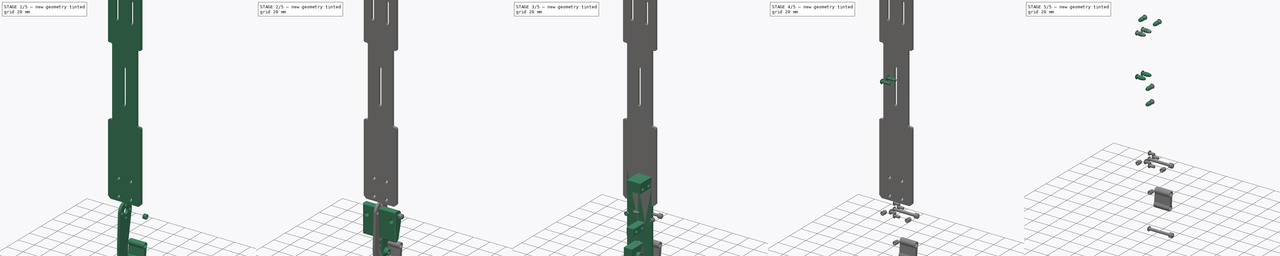
[diagram: build sequence overview — one tinted view per stage of 5, left to right]
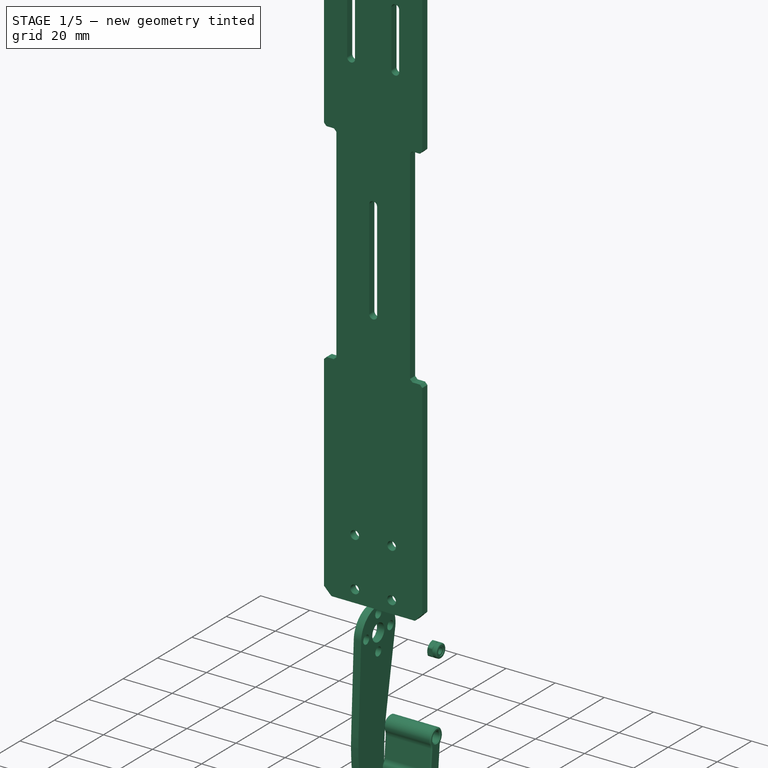
[diagram: stage 1 of 5 — iso view after this stage's code; geometry added in this stage tinted green]
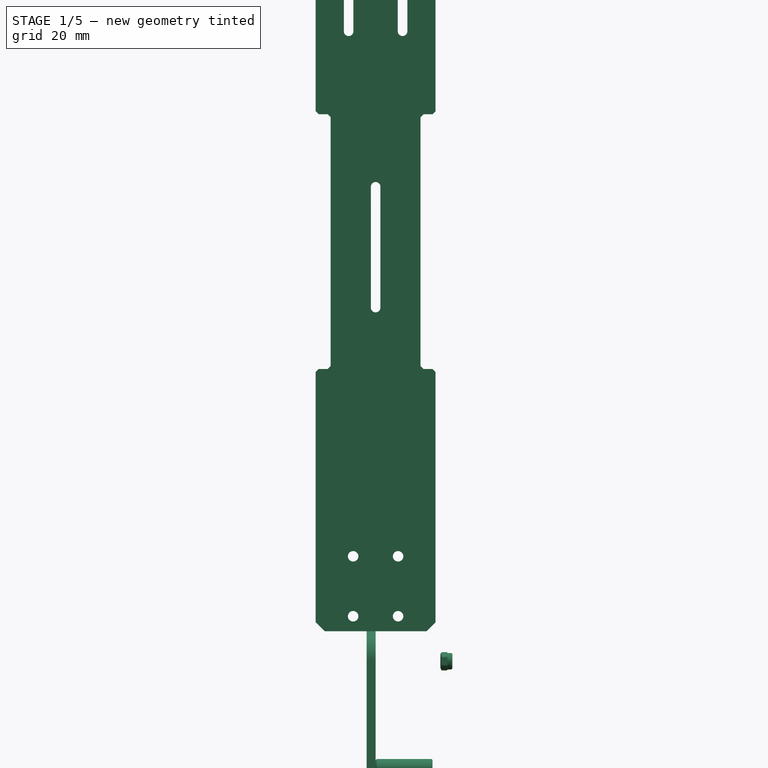
[diagram: stage 1 of 5 — front view after this stage's code; geometry added in this stage tinted green]
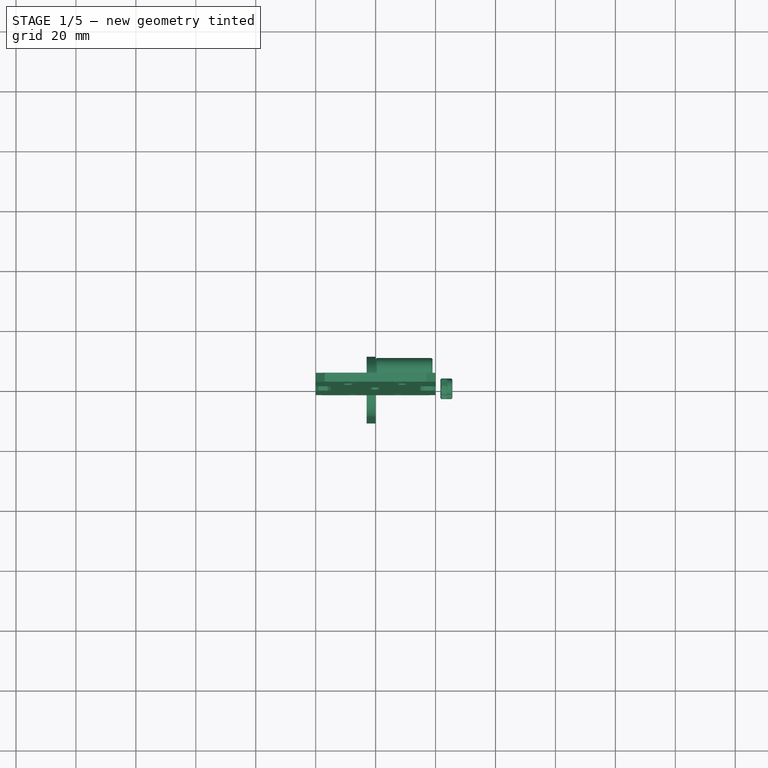
[diagram: stage 1 of 5 — top view after this stage's code; geometry added in this stage tinted green]
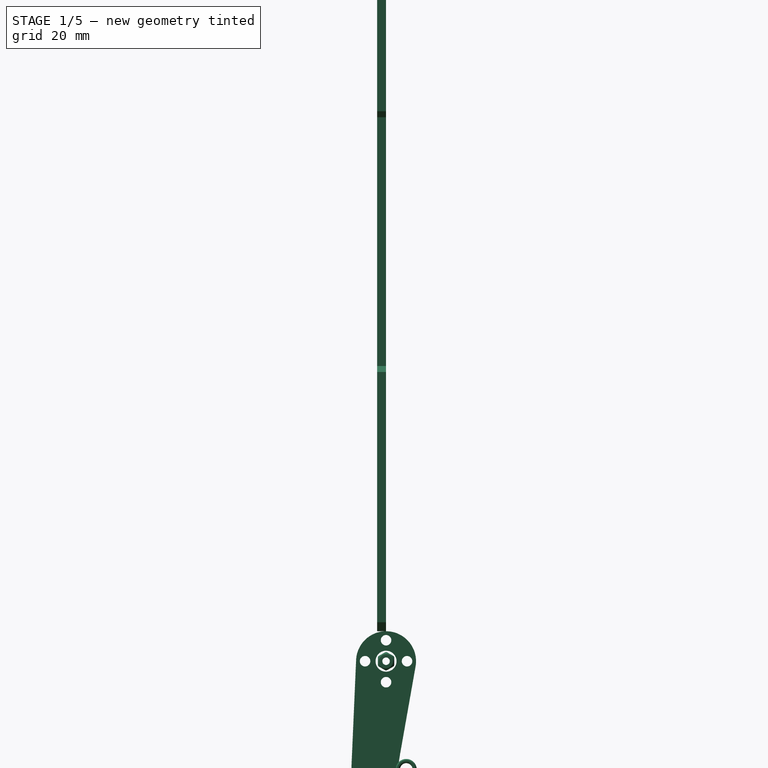
[diagram: stage 1 of 5 — right view after this stage's code; geometry added in this stage tinted green]
FCSTD DOCUMENT  (FreeCAD 2024.113R14555 (Git shallow))
Label: main-actuator
License: All rights reserved
LicenseURL: https://en.wikipedia.org/wiki/All_rights_reserved
objects: Part::FeaturePython×27, Sketcher::SketchObject×19, PartDesign::Pad×13, PartDesign::Chamfer×13, App::Link×9, PartDesign::Fillet×9, PartDesign::Pocket×7, App::DocumentObjectGroup×7, App::Part×6, PartDesign::Body×6, TechDraw::DrawProjGroupItem×5, TechDraw::DrawProjGroup×5, Part::SubShapeBinder×2, PartDesign::Draft×2, TechDraw::DrawSVGTemplate×2, TechDraw::DrawPage×2, Spreadsheet::Sheet×1
note: 205 computed .brp shape members not serialized (recipe doc carries the construction recipe); baked Part::Feature solids carry a one-line shape summary decoded from their .brp
EXTERNAL_REF file=../mechanical-parts/generic-hardware.FCStd obj=Part015
EXTERNAL_REF file=../mechanical-parts/generic-hardware.FCStd obj=Body042
EXTERNAL_REF file=../mechanical-parts/generic-hardware.FCStd obj=Part034
EXTERNAL_REF file=finger-filaflex.FCStd obj=Part008

FEATURE [Sketcher::SketchObject] Sketch001
  ArcFitTolerance = 1e-06
  AttachmentSupport = -> [XZ_Plane001]
  ExternalBSplineMaxDegree = 5
  ExternalBSplineTolerance = 0.0001
  FixShape = 1
  FullyConstrained = true
  InternalTolerance = 1e-06
  InvalidShape = false
  MakeInternals = false
  MapMode = 5
  Placement = pos=(0,0,0) rot=(1,0,0;1.5708rad)
  Support = -> [XZ_Plane001]
  TreeRank = 22
  ValidateShape = false
  sketch-geometry (23):
    g0: LineSegment StartX=-20 StartY=270 StartZ=0 EndX=-20 EndY=10 EndZ=0
    g1: LineSegment StartX=-20 StartY=10 StartZ=0 EndX=20 EndY=10 EndZ=0
    g2: LineSegment StartX=20 StartY=10 StartZ=0 EndX=20 EndY=270 EndZ=0
    g3: LineSegment StartX=20 StartY=270 StartZ=0 EndX=-20 EndY=270 EndZ=0
    g4: GeomPoint [constr] X=0 Y=140 Z=0
    g5: LineSegment [constr] StartX=-7.5 StartY=15 StartZ=0 EndX=-7.5 EndY=35 EndZ=0
    g6: LineSegment [constr] StartX=-7.5 StartY=35 StartZ=0 EndX=7.5 EndY=35 EndZ=0
    g7: LineSegment [constr] StartX=7.5 StartY=35 StartZ=0 EndX=7.5 EndY=15 EndZ=0
    g8: LineSegment [constr] StartX=7.5 StartY=15 StartZ=0 EndX=-7.5 EndY=15 EndZ=0
    g9: GeomPoint [constr] X=0 Y=25 Z=0
    g10: LineSegment [constr] StartX=-7.5 StartY=245 StartZ=0 EndX=-7.5 EndY=265 EndZ=0
    g11: LineSegment [constr] StartX=-7.5 StartY=265 StartZ=0 EndX=7.5 EndY=265 EndZ=0
    g12: LineSegment [constr] StartX=7.5 StartY=265 StartZ=0 EndX=7.5 EndY=245 EndZ=0
    g13: LineSegment [constr] StartX=7.5 StartY=245 StartZ=0 EndX=-7.5 EndY=245 EndZ=0
    g14: GeomPoint [constr] X=0 Y=255 Z=0
    g15: Circle CenterX=-7.5 CenterY=35 CenterZ=0 NormalX=0 NormalY=0 NormalZ=1 AngleXU=0 Radius=1.75
    g16: Circle CenterX=7.5 CenterY=35 CenterZ=0 NormalX=0 NormalY=0 NormalZ=1 AngleXU=0 Radius=1.75
    g17: Circle CenterX=7.5 CenterY=15 CenterZ=0 NormalX=0 NormalY=0 NormalZ=1 AngleXU=0 Radius=1.75
    g18: Circle CenterX=-7.5 CenterY=15 CenterZ=0 NormalX=0 NormalY=0 NormalZ=1 AngleXU=0 Radius=1.75
    g19: Circle CenterX=-7.5 CenterY=245 CenterZ=0 NormalX=0 NormalY=0 NormalZ=1 AngleXU=0 Radius=1.75
    g20: Circle CenterX=7.5 CenterY=245 CenterZ=0 NormalX=0 NormalY=0 NormalZ=1 AngleXU=0 Radius=1.75
    g21: Circle CenterX=7.5 CenterY=265 CenterZ=0 NormalX=0 NormalY=0 NormalZ=1 AngleXU=0 Radius=1.75
    g22: Circle CenterX=-7.5 CenterY=265 CenterZ=0 NormalX=0 NormalY=0 NormalZ=1 AngleXU=0 Radius=1.75
  constraints (55):
    c: Coincident(g0,g1)
    c: Coincident(g1,g2)
    c: Coincident(g2,g3)
    c: Coincident(g3,g0)
    c: Horizontal(g1)
    c: Horizontal(g3)
    c: Vertical(g0)
    c: Vertical(g2)
    c: Symmetric(g1,g0,g4)
    c: PointOnObject(g4,g-2)
    c: DistanceX(g1,g1) = 40
    c: DistanceY(g0,g0) = 260
    c: DistanceY(g-1,g0) = 10
    c: Coincident(g5,g6)
    c: Coincident(g6,g7)
    c: Coincident(g7,g8)
    c: Coincident(g8,g5)
    c: Horizontal(g6)
    c: Horizontal(g8)
    c: Vertical(g5)
    c: Vertical(g7)
    c: Symmetric(g6,g5,g9)
    c: PointOnObject(g9,g-2)
    c: Coincident(g10,g11)
    c: Coincident(g11,g12)
    c: Coincident(g12,g13)
    c: Coincident(g13,g10)
    c: Horizontal(g11)
    c: Horizontal(g13)
    c: Vertical(g10)
    c: Vertical(g12)
    c: Symmetric(g11,g10,g14)
    c: PointOnObject(g14,g-2)
    c: DistanceY(g12,g12) = 20
    c: DistanceX(g11,g11) = 15
    c: Equal(g13,g6)
    c: Equal(g12,g7)
    c: DistanceY(g1,g7) = 5
    c: DistanceY(g11,g2) = 5
    c: Coincident(g15,g5)
    c: Coincident(g16,g6)
    c: Coincident(g17,g7)
    c: Coincident(g18,g5)
    c: Coincident(g19,g10)
    c: Coincident(g20,g12)
    c: Coincident(g21,g11)
    c: Coincident(g22,g10)
    c: Equal(g22,g19)
    c: Equal(g22,g21)
    c: Equal(g22,g20)
    c: Equal(g22,g16)
    c: Equal(g22,g15)
    c: Equal(g22,g18)
    c: Equal(g22,g17)
    c: Diameter(g22) = 3.5
FEATURE [PartDesign::Pad] Pad
  AddSubType = 0
  AlongSketchNormal = false
  AutoTaperInnerAngle = true
  CheckUpToFaceLimits = true
  ClaimChildren = false
  Direction = (0,-1,0)
  Fit = 0
  FitJoin = 0
  FixShape = 1
  InnerFit = 0
  InnerFitJoin = 0
  InvalidShape = false
  Length = 3
  Length2 = 10
  Linearize = true
  NewSolid = false
  Profile = -> Sketch001
  ReferenceAxis = -> Sketch001 [N_Axis]
  Refine = true
  Suppress = false
  TaperInnerAngle = 0
  TaperInnerAngleRev = 0
  TreeRank = 23
  Type = 0
  ValidateShape = false
  _ProfileBasedVersion = 1
FEATURE [PartDesign::Chamfer] Chamfer
  AddSubType = 0
  Angle = 45
  Base = -> Pad [Edge8,Edge1,Edge5,Edge2]
  BaseFeature = -> Pad
  ChamferType = 0
  FixShape = 1
  FlipDirection = false
  InvalidShape = false
  NewSolid = false
  Refine = true
  Size = 3
  Size2 = 1
  SupportTransform = false
  Suppress = false
  TreeRank = 24
  UseAllEdges = false
  ValidateShape = false
FEATURE [Sketcher::SketchObject] Sketch
  ArcFitTolerance = 1e-06
  AttachmentSupport = -> [XZ_Plane001]
  ExternalBSplineMaxDegree = 5
  ExternalBSplineTolerance = 0.0001
  ExternalGeometry = -> [Chamfer]
  FixShape = 1
  FullyConstrained = true
  InternalTolerance = 1e-06
  InvalidShape = false
  MakeInternals = false
  MapMode = 5
  Placement = pos=(0,0,0) rot=(1,0,0;1.5708rad)
  Support = -> [XZ_Plane001]
  TreeRank = 28
  ValidateShape = false
  sketch-geometry (10):
    g0: LineSegment StartX=-25 StartY=97.5 StartZ=0 EndX=-25 EndY=182.5 EndZ=0
    g1: LineSegment StartX=-25 StartY=182.5 StartZ=0 EndX=-15 EndY=182.5 EndZ=0
    g2: LineSegment StartX=-15 StartY=182.5 StartZ=0 EndX=-15 EndY=97.5 EndZ=0
    g3: LineSegment StartX=-15 StartY=97.5 StartZ=0 EndX=-25 EndY=97.5 EndZ=0
    g4: GeomPoint [constr] X=-20 Y=140 Z=0
    g5: LineSegment StartX=15 StartY=182.5 StartZ=0 EndX=15 EndY=97.5 EndZ=0
    g6: LineSegment StartX=15 StartY=97.5 StartZ=0 EndX=25 EndY=97.5 EndZ=0
    g7: LineSegment StartX=25 StartY=97.5 StartZ=0 EndX=25 EndY=182.5 EndZ=0
    g8: LineSegment StartX=25 StartY=182.5 StartZ=0 EndX=15 EndY=182.5 EndZ=0
    g9: GeomPoint [constr] X=20 Y=140 Z=0
  constraints (24):
    c: Coincident(g0,g1)
    c: Coincident(g1,g2)
    c: Coincident(g2,g3)
    c: Coincident(g3,g0)
    c: Horizontal(g1)
    c: Horizontal(g3)
    c: Vertical(g0)
    c: Vertical(g2)
    c: Symmetric(g1,g0,g4)
    c: Coincident(g5,g6)
    c: Coincident(g6,g7)
    c: Coincident(g7,g8)
    c: Coincident(g8,g5)
    c: Horizontal(g6)
    c: Horizontal(g8)
    c: Vertical(g5)
    c: Vertical(g7)
    c: Symmetric(g6,g5,g9)
    c: Equal(g7,g0)
    c: Equal(g8,g1)
    c: Symmetric(g5,g1,g-2)
    c: DistanceY(g7,g7) = 85
    c: Symmetric(g-3,g-3,g9)
    c: DistanceX(g8,g8) = 10
FEATURE [PartDesign::Pocket] Pocket
  AddSubType = 1
  AlongSketchNormal = false
  AutoTaperInnerAngle = true
  BaseFeature = -> Chamfer
  CheckUpToFaceLimits = true
  ClaimChildren = false
  Direction = (0,1,2e-16)
  Fit = 0
  FitJoin = 0
  FixShape = 1
  InnerFit = 0
  InnerFitJoin = 0
  InvalidShape = false
  Length = 5
  Length2 = 10
  Linearize = true
  NewSolid = false
  Profile = -> Sketch
  ReferenceAxis = -> Sketch [N_Axis]
  Refine = true
  Reversed = true
  Suppress = false
  TaperInnerAngle = 0
  TaperInnerAngleRev = 0
  TreeRank = 29
  Type = 1
  ValidateShape = false
  _ProfileBasedVersion = 1
  _Version = 1
FEATURE [PartDesign::Chamfer] Chamfer001
  AddSubType = 0
  Angle = 45
  Base = -> Pocket [Edge59,Edge60,Edge54,Edge53,Edge61,Edge62,Edge28,Edge2]
  BaseFeature = -> Pocket
  ChamferType = 0
  FixShape = 1
  FlipDirection = false
  InvalidShape = false
  NewSolid = false
  Refine = true
  Size = 1
  Size2 = 1
  SupportTransform = false
  Suppress = false
  TreeRank = 30
  UseAllEdges = false
  ValidateShape = false
FEATURE [App::DocumentObjectGroup] Group  label="Visserie"
  ClaimAllChildren = true
  ExportMode = 1
  Group = -> [Insert,Insert001,Insert002,Insert003,Insert004,Insert005,Insert006,Insert007,Screw008,Screw009,Screw010,Screw011,Screw012,Screw013,Screw014,Screw015]
  TreeRank = 47
  _GroupVersion = 1
FEATURE [Sketcher::SketchObject] Sketch012
  ArcFitTolerance = 1e-06
  AttachmentSupport = -> [YZ_Plane002]
  ExternalBSplineMaxDegree = 5
  ExternalBSplineTolerance = 0.0001
  FixShape = 1
  FullyConstrained = true
  InternalTolerance = 1e-06
  InvalidShape = false
  MakeInternals = false
  MapMode = 5
  Placement = pos=(0,0,0) rot=(0.57735,0.57735,0.57735;2.0944rad)
  Support = -> [YZ_Plane002]
  TreeRank = 139
  ValidateShape = false
  sketch-geometry (20):
    g0: ArcOfCircle CenterX=0 CenterY=0 CenterZ=0 NormalX=0 NormalY=0 NormalZ=1 AngleXU=0 Radius=10 StartAngle=6.1082 EndAngle=9.38114
    g1: ArcOfCircle CenterX=0 CenterY=-78 CenterZ=0 NormalX=0 NormalY=0 NormalZ=1 AngleXU=0 Radius=7 StartAngle=3.27249 EndAngle=6.41409
    g2: Circle CenterX=0 CenterY=0 CenterZ=0 NormalX=0 NormalY=0 NormalZ=1 AngleXU=0 Radius=3.5
    g3: Circle [constr] CenterX=0 CenterY=0 CenterZ=0 NormalX=0 NormalY=0 NormalZ=1 AngleXU=0 Radius=7
    g4: LineSegment [constr] StartX=0 StartY=-7 StartZ=0 EndX=7 EndY=9e-16 EndZ=0
    g5: LineSegment [constr] StartX=7 StartY=-3e-16 StartZ=0 EndX=9e-16 EndY=7 EndZ=0
    g6: LineSegment [constr] StartX=6e-16 StartY=7 StartZ=0 EndX=-7 EndY=9e-16 EndZ=0
    g7: LineSegment [constr] StartX=-7 StartY=5e-16 StartZ=0 EndX=9e-16 EndY=-7 EndZ=0
    g8: Circle [constr] CenterX=0 CenterY=0 CenterZ=0 NormalX=0 NormalY=0 NormalZ=1 AngleXU=0 Radius=7
    g9: Circle CenterX=-7 CenterY=5e-16 CenterZ=0 NormalX=0 NormalY=0 NormalZ=1 AngleXU=0 Radius=1.75
    g10: Circle CenterX=0 CenterY=-7 CenterZ=0 NormalX=0 NormalY=0 NormalZ=1 AngleXU=0 Radius=1.75
    g11: Circle CenterX=7 CenterY=-3e-16 CenterZ=0 NormalX=0 NormalY=0 NormalZ=1 AngleXU=0 Radius=1.75
    g12: Circle CenterX=6e-16 CenterY=7 CenterZ=0 NormalX=0 NormalY=0 NormalZ=1 AngleXU=0 Radius=1.75
    g13: Circle CenterX=0 CenterY=-78 CenterZ=0 NormalX=0 NormalY=0 NormalZ=1 AngleXU=0 Radius=4
    g14: LineSegment StartX=-6.94011 StartY=-78.9137 StartZ=0 EndX=-11.8325 EndY=-41.7525 EndZ=0
    g15: LineSegment StartX=6.94011 StartY=-77.0863 StartZ=0 EndX=2.49534 EndY=-43.3249 EndZ=0
    g16: LineSegment StartX=-11.8325 StartY=-41.7525 StartZ=0 EndX=-9.99048 EndY=0.436194 EndZ=0
    g17: LineSegment StartX=2.49534 StartY=-43.3249 StartZ=0 EndX=9.84728 EndY=-1.74098 EndZ=0
    g18: LineSegment [constr] StartX=2.49534 StartY=-43.3249 StartZ=0 EndX=-11.8325 EndY=-41.7525 EndZ=0
    g19: LineSegment [constr] StartX=-4.66857 StartY=-42.5387 StartZ=0 EndX=0 EndY=0 EndZ=0
  constraints (47):
    c: Coincident(g0,g-1)
    c: PointOnObject(g1,g-2)
    c: Radius(g0) = 10
    c: DistanceY(g1,g0) = 78
    c: Radius(g1) = 7
    c: Coincident(g2,g0)
    c: Diameter(g2) = 7
    c: Coincident(g3,g0)
    c: Diameter(g3) = 14
    c: Coincident(g4,g5)
    c: Coincident(g5,g6)
    c: Coincident(g6,g7)
    c: Coincident(g7,g4)
    c: Equal(g4,g5)
    c: Equal(g4,g6)
    c: Equal(g4,g7)
    c: PointOnObject(g4,g8)
    c: PointOnObject(g5,g8)
    c: PointOnObject(g6,g8)
    c: PointOnObject(g7,g8)
    c: Coincident(g8,g0)
    c: PointOnObject(g7,g3)
    c: PointOnObject(g4,g-2)
    c: Coincident(g9,g6)
    c: Coincident(g10,g4)
    c: Coincident(g11,g4)
    c: Coincident(g12,g5)
    c: Equal(g12,g11)
    c: Equal(g12,g10)
    c: Equal(g12,g9)
    c: Diameter(g12) = 3.5
    c: Coincident(g13,g1)
    c: Diameter(g13) = 8
    c: Tangent(g15,g1) = -1.5708
    c: Tangent(g14,g1) = 1.5708
    c: Coincident(g16,g14)
    c: Coincident(g17,g15)
    c: Tangent(g17,g0) = -1.5708
    c: Tangent(g16,g0) = 1.5708
    c: Parallel(g14,g15)
    c: Coincident(g18,g15)
    c: Coincident(g18,g14)
    c: Coincident(g19,g0)
    c: Symmetric(g14,g15,g19)
    c: Perpendicular(g19,g18)
    c: Angle(g-2,g14) = 0.1309
    c: Angle(g14,g16) = 2.96706
FEATURE [PartDesign::Pad] Pad008
  AddSubType = 0
  AlongSketchNormal = false
  AutoTaperInnerAngle = true
  CheckUpToFaceLimits = true
  ClaimChildren = false
  Direction = (1,-2e-16,3e-16)
  Fit = 0
  FitJoin = 0
  FixShape = 1
  InnerFit = 0
  InnerFitJoin = 0
  InvalidShape = false
  Length = 3
  Length2 = 10
  Linearize = true
  NewSolid = false
  Profile = -> Sketch012
  ReferenceAxis = -> Sketch012 [N_Axis]
  Refine = true
  Reversed = true
  Suppress = false
  TaperInnerAngle = 0
  TaperInnerAngleRev = 0
  TreeRank = 140
  Type = 0
  ValidateShape = false
  _ProfileBasedVersion = 1
FEATURE [App::DocumentObjectGroup] Group003  label="VisserieSupportPince"
  ClaimAllChildren = true
  ExportMode = 1
  Group = -> [Insert008,Insert009,Insert010]
  TreeRank = 190
  _GroupVersion = 1
FEATURE [Sketcher::SketchObject] Sketch017
  ArcFitTolerance = 1e-06
  AttachmentSupport = -> [YZ_Plane004]
  ExternalBSplineMaxDegree = 5
  ExternalBSplineTolerance = 0.0001
  FixShape = 1
  FullyConstrained = true
  InternalTolerance = 1e-06
  InvalidShape = false
  MakeInternals = false
  MapMode = 5
  Placement = pos=(0,0,0) rot=(0.57735,0.57735,0.57735;2.0944rad)
  Support = -> [YZ_Plane004]
  TreeRank = 204
  ValidateShape = false
  sketch-geometry (13):
    g0: ArcOfCircle CenterX=0 CenterY=0 CenterZ=0 NormalX=0 NormalY=0 NormalZ=1 AngleXU=0 Radius=7 StartAngle=0.165806 EndAngle=3.3074
    g1: ArcOfCircle CenterX=0 CenterY=-78 CenterZ=0 NormalX=0 NormalY=0 NormalZ=1 AngleXU=0 Radius=7 StartAngle=2.73632 EndAngle=6.06848
    g2: Circle CenterX=0 CenterY=0 CenterZ=0 NormalX=0 NormalY=0 NormalZ=1 AngleXU=0 Radius=4
    g3: LineSegment StartX=-6.904 StartY=-1.15533 StartZ=0 EndX=0.110524 EndY=-43.0725 EndZ=0
    g4: LineSegment StartX=6.83927 StartY=-79.4914 StartZ=0 EndX=14.5118 EndY=-44.3071 EndZ=0
    g5: LineSegment StartX=14.5118 StartY=-44.3071 StartZ=0 EndX=6.904 EndY=1.15533 EndZ=0
    g6: LineSegment StartX=0.110524 StartY=-43.0725 StartZ=0 EndX=-1.70179 EndY=-64.2122 EndZ=0
    g7: LineSegment StartX=-6.43298 StartY=-75.2401 StartZ=0 EndX=-1.70179 EndY=-64.2122 EndZ=0
    g8: Circle CenterX=0 CenterY=-78 CenterZ=0 NormalX=0 NormalY=0 NormalZ=1 AngleXU=0 Radius=4
    g9: LineSegment [constr] StartX=0.110524 StartY=-43.0725 StartZ=0 EndX=14.5118 EndY=-44.3071 EndZ=0
    g10: Circle CenterX=6.72922 CenterY=-36.1124 CenterZ=0 NormalX=0 NormalY=0 NormalZ=1 AngleXU=0 Radius=1.6
    g11: Circle CenterX=5.44797 CenterY=-51.0576 CenterZ=0 NormalX=0 NormalY=0 NormalZ=1 AngleXU=0 Radius=1.6
    g12: LineSegment [constr] StartX=5.44797 StartY=-51.0576 StartZ=0 EndX=6.72922 EndY=-36.1124 EndZ=0
  constraints (31):
    c: Equal(g0,g1)
    c: Coincident(g0,g-1)
    c: PointOnObject(g1,g-2)
    c: Radius(g0) = 7
    c: DistanceY(g1,g0) = 78
    c: Coincident(g2,g0)
    c: Diameter(g2) = 8
    c: Coincident(g5,g4)
    c: Tangent(g5,g0) = -1.5708
    c: Tangent(g3,g0) = -1.5708
    c: Parallel(g3,g5)
    c: Tangent(g4,g1) = -1.5708
    c: Coincident(g6,g3)
    c: Coincident(g7,g6)
    c: Tangent(g7,g1) = 1.5708
    c: Coincident(g8,g1)
    c: Equal(g8,g2)
    c: Angle(g-2,g3) = 0.165806
    c: Angle(g-2,g6) = 3.05607
    c: Coincident(g9,g3)
    c: Coincident(g9,g4)
    c: Perpendicular(g6,g9)
    c: Distance(g3) = 42.5
    c: Distance(g7) = 12
    c: Equal(g11,g10)
    c: Diameter(g11) = 3.2
    c: Coincident(g12,g11)
    c: Coincident(g12,g10)
    c: Symmetric(g10,g11,g9)
    c: Distance(g12) = 15
    c: Distance(g3,g12) = 6
FEATURE [PartDesign::Pad] Pad011
  AddSubType = 0
  AlongSketchNormal = false
  AutoTaperInnerAngle = true
  CheckUpToFaceLimits = true
  ClaimChildren = false
  Direction = (1,-2e-16,3e-16)
  Fit = 0
  FitJoin = 0
  FixShape = 1
  InnerFit = 0
  InnerFitJoin = 0
  InvalidShape = false
  Length = 3
  Length2 = 10
  Linearize = true
  NewSolid = false
  Profile = -> Sketch017
  ReferenceAxis = -> Sketch017 [N_Axis]
  Refine = true
  Reversed = true
  Suppress = false
  TaperInnerAngle = 0
  TaperInnerAngleRev = 0
  TreeRank = 205
  Type = 0
  ValidateShape = false
  _ProfileBasedVersion = 1
FEATURE [App::Link] Link003  label="Link003(BrasInferieur)"
  AutoLinkLabel = true
  AutoPlacement = true
  LinkPlacement = pos=(21,-7.62939e-06,7.62939e-06) rot=(1.125,0,0;0rad)
  LinkedObject = -> Body004
  Placement = pos=(21,-7.62939e-06,7.62939e-06) rot=(1.125,0,0;0rad)
  SyncGroupVisibility = false
  TreeRank = 206
  _LinkVersion = 1
FEATURE [PartDesign::Fillet] Fillet006
  AddSubType = 0
  Base = -> Pad011 [Edge17,Edge5,Edge14]
  BaseFeature = -> Pad011
  FixShape = 1
  InvalidShape = false
  NewSolid = false
  Radius = 30
  Refine = true
  SupportTransform = false
  Suppress = false
  TreeRank = 207
  UseAllEdges = false
  ValidateShape = false
FEATURE [Part::FeaturePython] Nut  label="M3-Écrou"  # Fasteners workbench fastener (typed FeaturePython)
  FixShape = 1
  InvalidShape = false
  Placement = pos=(21.6,-2.21e-14,-78) rot=(0,1,0;1.5708rad)
  TreeRank = 217
  ValidateShape = false
  baseObject = -> Body004 [Edge15]
  diameter = 1
  invert = false
  leftHanded = false
  matchOuter = false
  offset = 21.6
  thread = false
  type = 21
FEATURE [Part::FeaturePython] Nut001  label="M3-Écrou001"  # Fasteners workbench fastener (typed FeaturePython)
  FixShape = 1
  InvalidShape = false
  Placement = pos=(21.6,-4.8e-15,4.8e-15) rot=(0,1,0;1.5708rad)
  TreeRank = 218
  ValidateShape = false
  baseObject = -> Body004 [Edge14]
  diameter = 1
  invert = false
  leftHanded = false
  matchOuter = false
  offset = 21.6
  thread = false
  type = 21
FEATURE [App::DocumentObjectGroup] Group005  label="VisserieBrasInf"
  ClaimAllChildren = true
  ExportMode = 1
  Group = -> [Screw020,Screw021,Nut,Nut001]
  TreeRank = 219
  _GroupVersion = 1
FEATURE [PartDesign::Fillet] Fillet007
  AddSubType = 0
  Base = -> Pad008 [Edge14,Edge5]
  BaseFeature = -> Pad008
  FixShape = 1
  InvalidShape = false
  NewSolid = false
  Radius = 80
  Refine = true
  SupportTransform = false
  Suppress = false
  TreeRank = 220
  UseAllEdges = false
  ValidateShape = false
FEATURE [PartDesign::Body] Body002  label="BrasServo"
  AutoGroupSolids = false
  ClaimAllChildren = false
  ExportMode = 0
  FixShape = 1
  Group = -> [Sketch012,Pad008,Fillet007]
  InvalidShape = false
  Origin = -> Origin004
  SingleSolid = true
  Tip = -> Fillet007
  TreeRank = 138
  ValidateShape = false
  _ExportChildren = -> [Pad008,Fillet007]
  _GroupVersion = 1
FEATURE [App::Part] Part002  label="EnsembleBrasServo"
  ClaimAllChildren = false
  ExportMode = 1
  Group = -> [Group002,Body002,Screw016,Screw017,Screw018,Screw019,Link002]
  Origin = -> Origin005
  Placement = pos=(-20,-16,115) rot=(1,0,0;-1.34979rad)
  TreeRank = 144
  _ExportChildren = -> [Group002,Body002,Link002]
  _GroupVersion = 1
  expr: Placement.Rotation.Angle = -Spreadsheet.AngleBras
FEATURE [App::Link] Link008  label="Link008(finger-actuator)"
  AutoLinkLabel = true
  AutoPlacement = true
  LinkPlacement = pos=(1.31134e-06,-15,-97) rot=(0,0,1;3.14159rad)
  LinkedObject = -> <external finger-filaflex.FCStd>#Part008
  Placement = pos=(1.31134e-06,-15,-97) rot=(0,0,1;3.14159rad)
  SyncGroupVisibility = false
  TreeRank = 224
  _LinkVersion = 1
FEATURE [App::Part] Part003  label="EnsemblePince"
  ClaimAllChildren = false
  ExportMode = 1
  Group = -> [Body003,Insert008,Insert009,Insert010,Group003,Link008]
  Origin = -> Origin007
  Placement = pos=(0,-92.1029,97.9017) rot=(0,0,1;0rad)
  TreeRank = 183
  _ExportChildren = -> [Body003,Group003,Link008]
  _GroupVersion = 1
  expr: Placement.Base.y = -Spreadsheet.YSupport
  expr: Placement.Base.z = Spreadsheet.ZSupport
FEATURE [Part::SubShapeBinder] Import001  label="Import001(Fillet006)"
  BindCopyOnChange = 0
  BindMode = 0
  ClaimChildren = false
  Context = -> Part [Part005.Part004.Body005.Import001.]
  EdgeTolerance = 1e-06
  FillStyle = 0
  FixShape = 1
  Fuse = false
  InvalidShape = false
  MakeFace = false
  MergeEdges = true
  OffsetFill = false
  OffsetIntersection = false
  OffsetJoinType = 0
  OffsetOpenResult = false
  Outline = false
  PartialLoad = false
  Relative = true
  SplitEdges = false
  Support = -> [Body004[Fillet006.]]
  TightBound = false
  TreeRank = 236
  ValidateShape = false
  _Version = 8
FEATURE [Sketcher::SketchObject] Sketch018
  ArcFitTolerance = 1e-06
  AttachmentSupport = -> [YZ_Plane005]
  ExternalBSplineMaxDegree = 5
  ExternalBSplineTolerance = 0.0001
  ExternalGeometry = -> [Import001]
  FixShape = 1
  FullyConstrained = true
  InternalTolerance = 1e-06
  InvalidShape = false
  MakeInternals = false
  MapMode = 5
  Placement = pos=(0,0,0) rot=(0.57735,0.57735,0.57735;2.0944rad)
  Support = -> [YZ_Plane005]
  TreeRank = 235
  ValidateShape = false
  sketch-geometry (7):
    g0: Circle CenterX=6.72922 CenterY=-36.1124 CenterZ=0 NormalX=0 NormalY=0 NormalZ=1 AngleXU=0 Radius=2.1
    g1: Circle CenterX=5.44797 CenterY=-51.0576 CenterZ=0 NormalX=0 NormalY=0 NormalZ=1 AngleXU=0 Radius=2.1
    g2: ArcOfCircle CenterX=6.72922 CenterY=-36.1124 CenterZ=0 NormalX=0 NormalY=0 NormalZ=1 AngleXU=0 Radius=3.5 StartAngle=5.42247 EndAngle=10.1145
    g3: ArcOfCircle CenterX=5.44797 CenterY=-51.0576 CenterZ=0 NormalX=0 NormalY=0 NormalZ=1 AngleXU=0 Radius=3.5 StartAngle=2.28088 EndAngle=6.97286
    g4: LineSegment StartX=4.02913 StartY=-38.3394 StartZ=0 EndX=3.16633 EndY=-48.4035 EndZ=0
    g5: LineSegment StartX=8.14806 StartY=-48.8306 StartZ=0 EndX=9.01086 EndY=-38.7665 EndZ=0
    g6: LineSegment [constr] StartX=5.44797 StartY=-51.0576 StartZ=0 EndX=6.72922 EndY=-36.1124 EndZ=0
  constraints (18):
    c: Coincident(g0,g-3)
    c: Coincident(g1,g-4)
    c: Equal(g1,g0)
    c: Diameter(g1) = 4.2
    c: Coincident(g2,g0)
    c: Coincident(g3,g1)
    c: Coincident(g4,g2)
    c: Coincident(g5,g3)
    c: Coincident(g5,g2)
    c: Coincident(g3,g4)
    c: Parallel(g5,g4)
    c: Coincident(g6,g1)
    c: Coincident(g6,g0)
    c: Parallel(g5,g6)
    c: Equal(g2,g3)
    c: Radius(g3) = 3.5
    c: Equal(g5,g4)
    c: Distance(g2,g2) = 5
FEATURE [PartDesign::Pad] Pad012
  AddSubType = 0
  AlongSketchNormal = false
  AutoTaperInnerAngle = true
  CheckUpToFaceLimits = true
  ClaimChildren = false
  Direction = (1,-3e-16,3e-16)
  Fit = 0
  FitJoin = 0
  FixShape = 1
  InnerFit = 0
  InnerFitJoin = 0
  InvalidShape = false
  Length = 19
  Length2 = 10
  Linearize = true
  NewSolid = false
  Profile = -> Sketch018
  ReferenceAxis = -> Sketch018 [N_Axis]
  Refine = true
  Suppress = false
  TaperInnerAngle = 0
  TaperInnerAngleRev = 0
  TreeRank = 237
  Type = 0
  ValidateShape = false
  _ProfileBasedVersion = 1
FEATURE [PartDesign::Fillet] Fillet008
  AddSubType = 0
  Base = -> Pad012 [Edge2,Edge1,Edge8,Edge5]
  BaseFeature = -> Pad012
  FixShape = 1
  InvalidShape = false
  NewSolid = false
  Radius = 3
  Refine = true
  SupportTransform = false
  Suppress = false
  TreeRank = 238
  UseAllEdges = false
  ValidateShape = false
FEATURE [PartDesign::Chamfer] Chamfer012
  AddSubType = 0
  Angle = 45
  Base = -> Fillet008 [Face5,Face2]
  BaseFeature = -> Fillet008
  ChamferType = 0
  FixShape = 1
  FlipDirection = false
  InvalidShape = false
  NewSolid = false
  Refine = true
  Size = 0.4
  Size2 = 1
  SupportTransform = false
  Suppress = false
  TreeRank = 239
  UseAllEdges = false
  ValidateShape = false
FEATURE [PartDesign::Body] Body005  label="InterBras"
  AutoGroupSolids = false
  ClaimAllChildren = false
  ExportMode = 0
  FixShape = 1
  Group = -> [Sketch018,Import001,Pad012,Fillet008,Chamfer012]
  InvalidShape = false
  Origin = -> Origin011
  SingleSolid = true
  Tip = -> Chamfer012
  TreeRank = 234
  ValidateShape = false
  _ExportChildren = -> [Import001,Pad012,Fillet008,Chamfer012]
  _GroupVersion = 1
FEATURE [App::Part] Part004  label="EnsembleBrasInferieur"
  ClaimAllChildren = false
  ExportMode = 1
  Group = -> [Body004,Link003,Link004,Link005,Link006,Link007,Group004,Screw020,Screw021,Nut,Nut001,Group005,Body005]
  Origin = -> Origin008
  Placement = pos=(-9,-16,71.5) rot=(1,0,0;-1.34979rad)
  TreeRank = 193
  _ExportChildren = -> [Body004,Link003,Group004,Group005,Body005]
  _GroupVersion = 1
  expr: Placement.Rotation.Angle = -Spreadsheet.AngleBras
FEATURE [App::Part] Part005  label="EnsembleActuator"
  ClaimAllChildren = false
  ExportMode = 1
  Group = -> [Part004,Part003,Part002,Body,Part001,Group,Insert005,Insert,Insert001,Insert002,Insert003,Insert004,Screw014,Screw009,Screw008,Screw011,Insert006,Insert007,Screw012,Screw010,Screw013,Screw015,Group001,Sketch002,Spreadsheet]
  Origin = -> Origin010
  Placement = pos=(0,0,72.5) rot=(0,0,1;0rad)
  TreeRank = 223
  _ExportChildren = -> [Part004,Part003,Part002,Body,Part001,Group,Group001]
  _GroupVersion = 1
FEATURE [TechDraw::DrawSVGTemplate] Template
  Height = 210
  Orientation = 1
  Template = <path>
  TreeRank = 242
  Width = 297
FEATURE [TechDraw::DrawProjGroupItem] ProjItem  label="Front"
  CoarseView = false
  Direction = (-1,0,0)
  Focus = 100
  HardHidden = false
  IsoCount = 0
  IsoHidden = false
  IsoVisible = false
  LockPosition = true
  Perspective = false
  Rotation = 0
  RotationVector = (0,-1,0)
  ScaleType = 2
  ScrubCount = 0
  SeamHidden = false
  SeamVisible = false
  SmoothHidden = false
  SmoothVisible = false
  Source = -> [Fillet007]
  TreeRank = 245
  Type = 0
  X = 0
  XDirection = (0,-1,0)
  Y = 0
FEATURE [TechDraw::DrawProjGroup] ProjGroup
  Anchor = -> ProjItem
  AutoDistribute = true
  LockPosition = false
  ProjectionType = 0
  Rotation = 0
  ScaleType = 0
  Source = -> [Fillet007]
  TreeRank = 246
  Views = -> [ProjItem]
  X = 110.196
  Y = 107.143
  spacingX = 15
  spacingY = 15
FEATURE [TechDraw::DrawProjGroupItem] ProjItem001  label="Front001"
  CoarseView = false
  Direction = (-1,0,0)
  Focus = 100
  HardHidden = false
  IsoCount = 0
  IsoHidden = false
  IsoVisible = false
  LockPosition = true
  Perspective = false
  Rotation = 0
  RotationVector = (0,-1,0)
  ScaleType = 2
  ScrubCount = 0
  SeamHidden = false
  SeamVisible = false
  SmoothHidden = false
  SmoothVisible = false
  Source = -> [Fillet006]
  TreeRank = 248
  Type = 0
  X = 0
  XDirection = (0,-1,0)
  Y = 0
FEATURE [TechDraw::DrawProjGroup] ProjGroup001
  Anchor = -> ProjItem001
  AutoDistribute = true
  LockPosition = false
  ProjectionType = 0
  Rotation = 0
  ScaleType = 0
  Source = -> [Fillet006]
  TreeRank = 249
  Views = -> [ProjItem001]
  X = 160.018
  Y = 106.071
  spacingX = 15
  spacingY = 15
FEATURE [TechDraw::DrawProjGroupItem] ProjItem002  label="Front002"
  CoarseView = false
  Direction = (-1,0,0)
  Focus = 100
  HardHidden = false
  IsoCount = 0
  IsoHidden = false
  IsoVisible = false
  LockPosition = true
  Perspective = false
  Rotation = 0
  RotationVector = (0,-1,0)
  ScaleType = 2
  ScrubCount = 0
  SeamHidden = false
  SeamVisible = false
  SmoothHidden = false
  SmoothVisible = false
  Source = -> [Fillet007]
  TreeRank = 251
  Type = 0
  X = 0
  XDirection = (0,-1,0)
  Y = 0
FEATURE [TechDraw::DrawProjGroup] ProjGroup002
  Anchor = -> ProjItem002
  AutoDistribute = true
  LockPosition = false
  ProjectionType = 0
  Rotation = 0
  ScaleType = 0
  Source = -> [Fillet007]
  TreeRank = 252
  Views = -> [ProjItem002]
  X = 87.9643
  Y = 106.071
  spacingX = 15
  spacingY = 15
FEATURE [TechDraw::DrawProjGroupItem] ProjItem003  label="Front003"
  CoarseView = false
  Direction = (-1,0,0)
  Focus = 100
  HardHidden = false
  IsoCount = 0
  IsoHidden = false
  IsoVisible = false
  LockPosition = true
  Perspective = false
  Rotation = 0
  RotationVector = (0,-1,0)
  ScaleType = 2
  ScrubCount = 0
  SeamHidden = false
  SeamVisible = false
  SmoothHidden = false
  SmoothVisible = false
  Source = -> [Fillet006]
  TreeRank = 254
  Type = 0
  X = 0
  XDirection = (0,-1,0)
  Y = 0
FEATURE [TechDraw::DrawProjGroup] ProjGroup003
  Anchor = -> ProjItem003
  AutoDistribute = true
  LockPosition = false
  ProjectionType = 0
  Rotation = 0
  ScaleType = 0
  Source = -> [Fillet006]
  TreeRank = 255
  Views = -> [ProjItem003]
  X = 141.804
  Y = 106.339
  spacingX = 15
  spacingY = 15
FEATURE [TechDraw::DrawPage] Page  label="Laser3mm"
  KeepUpdated = true
  NextBalloonIndex = 1
  ProjectionType = 0
  Template = -> Template
  TreeRank = 243
  Views = -> [ProjGroup,ProjGroup001,ProjGroup002,ProjGroup003]
FEATURE [Sketcher::SketchObject] Sketch019
  ArcFitTolerance = 1e-06
  AttachmentSupport = -> [XZ_Plane001]
  ExternalBSplineMaxDegree = 5
  ExternalBSplineTolerance = 0.0001
  FixShape = 1
  FullyConstrained = true
  InternalTolerance = 1e-06
  InvalidShape = false
  MakeInternals = false
  MapMode = 5
  Placement = pos=(0,0,0) rot=(1,0,0;1.5708rad)
  Support = -> [XZ_Plane001]
  TreeRank = 256
  ValidateShape = false
  sketch-geometry (18):
    g0: Circle [constr] CenterX=9 CenterY=230.2 CenterZ=0 NormalX=0 NormalY=0 NormalZ=1 AngleXU=0 Radius=1.6
    g1: Circle [constr] CenterX=-9 CenterY=230.2 CenterZ=0 NormalX=0 NormalY=0 NormalZ=1 AngleXU=0 Radius=1.6
    g2: Circle [constr] CenterX=0 CenterY=155.3 CenterZ=0 NormalX=0 NormalY=0 NormalZ=1 AngleXU=0 Radius=1.6
    g3: Circle [constr] CenterX=0 CenterY=138 CenterZ=0 NormalX=0 NormalY=0 NormalZ=1 AngleXU=0 Radius=1.6
    g4: ArcOfCircle CenterX=9 CenterY=233.2 CenterZ=0 NormalX=0 NormalY=0 NormalZ=1 AngleXU=0 Radius=1.6 StartAngle=4.8e-15 EndAngle=3.14159
    g5: ArcOfCircle CenterX=9 CenterY=210.2 CenterZ=0 NormalX=0 NormalY=0 NormalZ=1 AngleXU=0 Radius=1.6 StartAngle=3.14159 EndAngle=6.28319
    g6: LineSegment StartX=7.4 StartY=233.2 StartZ=0 EndX=7.4 EndY=210.2 EndZ=0
    g7: LineSegment StartX=10.6 StartY=210.2 StartZ=0 EndX=10.6 EndY=233.2 EndZ=0
    g8: ArcOfCircle CenterX=-9 CenterY=233.2 CenterZ=0 NormalX=0 NormalY=0 NormalZ=1 AngleXU=0 Radius=1.6 StartAngle=2.9e-15 EndAngle=3.14159
    g9: ArcOfCircle CenterX=-9 CenterY=210.2 CenterZ=0 NormalX=0 NormalY=0 NormalZ=1 AngleXU=0 Radius=1.6 StartAngle=3.14159 EndAngle=6.28319
    g10: LineSegment StartX=-10.6 StartY=233.2 StartZ=0 EndX=-10.6 EndY=210.2 EndZ=0
    g11: LineSegment StartX=-7.4 StartY=210.2 StartZ=0 EndX=-7.4 EndY=233.2 EndZ=0
    g12: ArcOfCircle CenterX=0 CenterY=158.3 CenterZ=0 NormalX=0 NormalY=0 NormalZ=1 AngleXU=0 Radius=1.6 StartAngle=9.32e-14 EndAngle=3.14159
    g13: ArcOfCircle CenterX=0 CenterY=118 CenterZ=0 NormalX=0 NormalY=0 NormalZ=1 AngleXU=0 Radius=1.6 StartAngle=3.14159 EndAngle=6.28319
    g14: LineSegment StartX=-1.6 StartY=158.3 StartZ=0 EndX=-1.6 EndY=118 EndZ=0
    g15: LineSegment StartX=1.6 StartY=118 StartZ=0 EndX=1.6 EndY=158.3 EndZ=0
    g16: LineSegment [constr] StartX=9 StartY=230.2 StartZ=0 EndX=9 EndY=210.2 EndZ=0
    g17: LineSegment [constr] StartX=0 StartY=138 StartZ=0 EndX=0 EndY=118 EndZ=0
  constraints (45):
    c: PointOnObject(g2,g-2)
    c: PointOnObject(g3,g-2)
    c: Symmetric(g0,g1,g-2)
    c: DistanceX(g1,g0) = 18
    c: DistanceY(g3,g2) = 17.3
    c: DistanceY(g2,g1) = 74.9
    c: Equal(g2,g3)
    c: Equal(g2,g1)
    c: Equal(g2,g0)
    c: Diameter(g2) = 3.2
    c: Tangent(g4,g6) = -1.5708
    c: Tangent(g6,g5) = -1.5708
    c: Tangent(g5,g7) = -1.5708
    c: Tangent(g7,g4) = -1.5708
    c: Equal(g4,g5)
    c: Vertical(g6)
    c: Tangent(g8,g10) = -1.5708
    c: Tangent(g10,g9) = -1.5708
    c: Tangent(g9,g11) = -1.5708
    c: Tangent(g11,g8) = -1.5708
    c: Equal(g8,g9)
    c: Vertical(g10)
    c: Equal(g8,g4)
    c: Equal(g4,g0)
    c: Vertical(g8,g1)
    c: Vertical(g4,g0)
    c: Horizontal(g4,g8)
    c: Horizontal(g9,g5)
    c: Tangent(g12,g14) = -1.5708
    c: Tangent(g14,g13) = -1.5708
    c: Tangent(g13,g15) = -1.5708
    c: Tangent(g15,g12) = -1.5708
    c: Equal(g12,g13)
    c: PointOnObject(g12,g-2)
    c: PointOnObject(g13,g-2)
    c: Equal(g12,g2)
    c: DistanceY(g2,g12) = 3
    c: DistanceY(g0,g4) = 3
    c: DistanceY(g1) = 230.2
    c: Coincident(g16,g0)
    c: Coincident(g16,g5)
    c: Coincident(g17,g3)
    c: Coincident(g17,g13)
    c: Equal(g17,g16)
    c: DistanceY(g17,g17) = 20
FEATURE [PartDesign::Pocket] Pocket007
  AddSubType = 1
  AlongSketchNormal = false
  AutoTaperInnerAngle = true
  BaseFeature = -> Chamfer001
  CheckUpToFaceLimits = true
  ClaimChildren = false
  Direction = (0,1,2e-16)
  Fit = 0
  FitJoin = 0
  FixShape = 1
  InnerFit = 0
  InnerFitJoin = 0
  InvalidShape = false
  Length = 5
  Length2 = 10
  Linearize = true
  NewSolid = false
  Profile = -> Sketch019
  ReferenceAxis = -> Sketch019 [N_Axis]
  Refine = true
  Reversed = true
  Suppress = false
  TaperInnerAngle = 0
  TaperInnerAngleRev = 0
  TreeRank = 257
  Type = 1
  ValidateShape = true
  _ProfileBasedVersion = 1
  _Version = 1
FEATURE [PartDesign::Body] Body001  label="MainPlate"
  AutoGroupSolids = false
  ClaimAllChildren = false
  ExportMode = 0
  FixShape = 1
  Group = -> [Sketch001,Pad,Chamfer,Sketch,Pocket,Chamfer001,Sketch019,Pocket007]
  InvalidShape = false
  Origin = -> Origin001
  SingleSolid = true
  Tip = -> Pocket007
  TreeRank = 21
  ValidateShape = false
  _ExportChildren = -> [Pad,Chamfer,Pocket,Chamfer001,Pocket007]
  _GroupVersion = 1
FEATURE [App::Part] Part  label="main-actuator"
  ClaimAllChildren = false
  ExportMode = 1
  Group = -> [Body001,Part005]
  Origin = -> Origin
  TreeRank = 27
  _ExportChildren = -> [Body001,Part005]
  _GroupVersion = 1
FEATURE [TechDraw::DrawSVGTemplate] Template001
  Height = 210
  Orientation = 1
  Template = <path>
  TreeRank = 259
  Width = 297
FEATURE [TechDraw::DrawProjGroupItem] ProjItem004  label="Front004"
  CoarseView = false
  Direction = (0,-1,0)
  Focus = 100
  HardHidden = false
  IsoCount = 0
  IsoHidden = false
  IsoVisible = false
  LockPosition = true
  Perspective = false
  Rotation = 0
  RotationVector = (0,0,-1)
  ScaleType = 2
  ScrubCount = 0
  SeamHidden = false
  SeamVisible = false
  SmoothHidden = false
  SmoothVisible = false
  Source = -> [Pocket007]
  TreeRank = 265
  Type = 0
  X = 0
  XDirection = (0,0,-1)
  Y = 0
FEATURE [TechDraw::DrawProjGroup] ProjGroup004
  Anchor = -> ProjItem004
  AutoDistribute = true
  LockPosition = false
  ProjectionType = 0
  Rotation = 0
  ScaleType = 0
  Source = -> [Pocket007]
  TreeRank = 266
  Views = -> [ProjItem004]
  X = 130.737
  Y = 189.038
  spacingX = 15
  spacingY = 15
FEATURE [TechDraw::DrawPage] Page001  label="Laser3mmMainPlate"
  KeepUpdated = true
  NextBalloonIndex = 1
  ProjectionType = 0
  Template = -> Template001
  TreeRank = 260
  Views = -> [ProjGroup004]
FEATURE [App::DocumentObjectGroup] Group006  label="Laser"
  ClaimAllChildren = true
  ExportMode = 1
  Group = -> [Page,Page001]
  TreeRank = 240
  _GroupVersion = 1
note: 2 file-system paths scrubbed to <path> (originals preserved in the JSON sidecar)

RESOLVED EXTERNAL PARTS (link-assembly join: the EXTERNAL_REF files above that resolve inside this repo's crawl, each included once):
---- part ../mechanical-parts/generic-hardware.FCStd = doc fcstd_3cd127f5b444 (208677 chars; too large to inline — full recipe in that document) ----
---- part finger-filaflex.FCStd = doc fcstd_7cb60da836be (176676 chars; too large to inline — full recipe in that document) ----
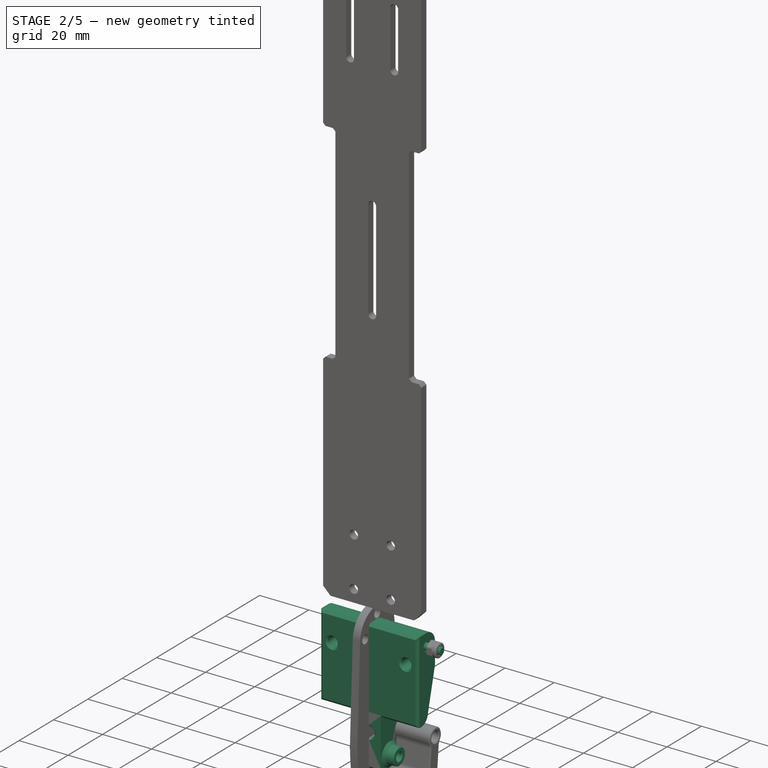
[diagram: stage 2 of 5 — iso view after this stage's code; geometry added in this stage tinted green]
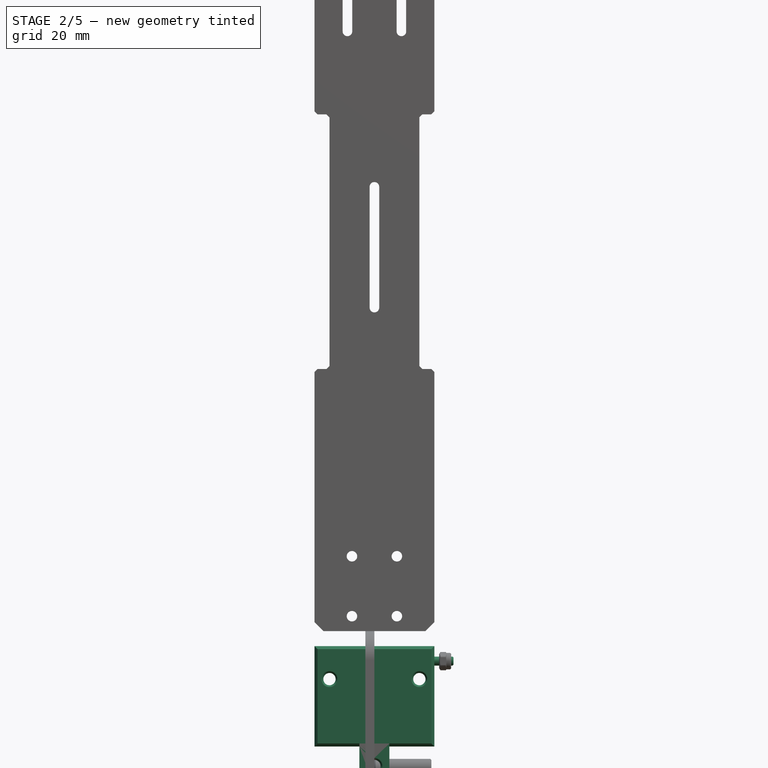
[diagram: stage 2 of 5 — front view after this stage's code; geometry added in this stage tinted green]
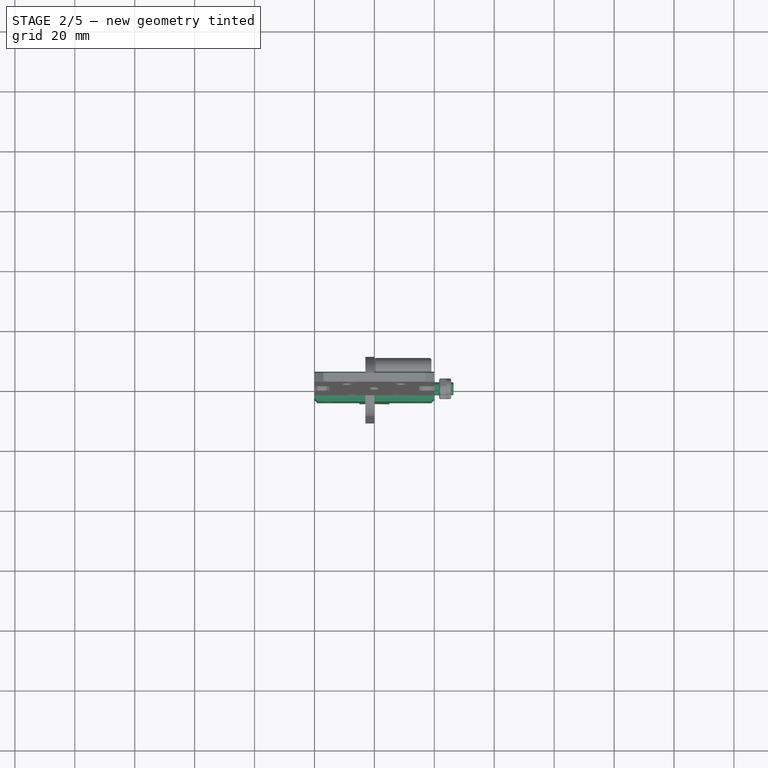
[diagram: stage 2 of 5 — top view after this stage's code; geometry added in this stage tinted green]
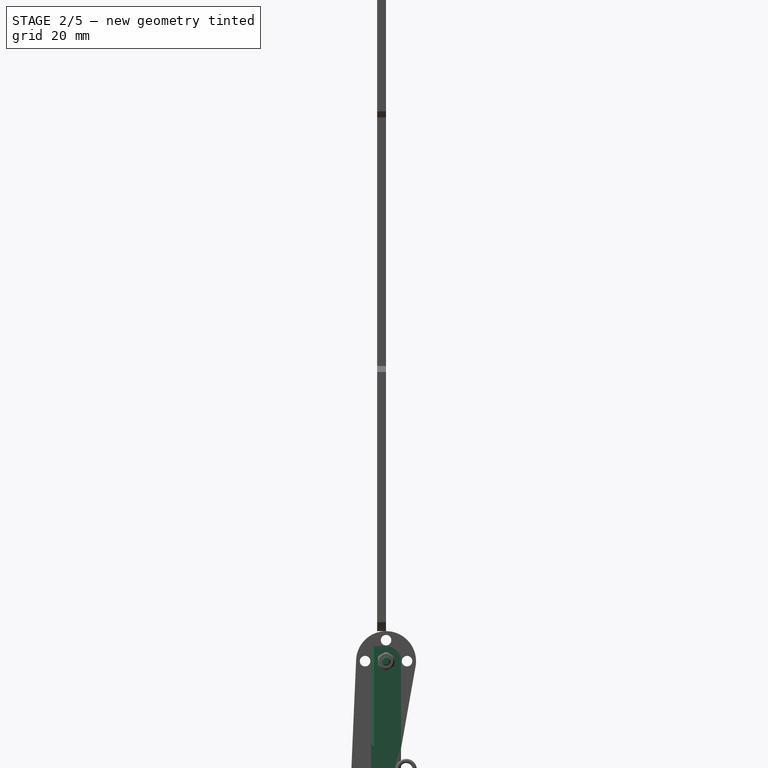
[diagram: stage 2 of 5 — right view after this stage's code; geometry added in this stage tinted green]
FEATURE [App::DocumentObjectGroup] Group002  label="VisserieBras"
  ClaimAllChildren = true
  ExportMode = 1
  Group = -> [Screw016,Screw017,Screw018,Screw019]
  TreeRank = 153
  _GroupVersion = 1
FEATURE [App::Link] Link002  label="Link002(MF83)"
  AutoLinkLabel = true
  AutoPlacement = true
  LinkPlacement = pos=(-3.00001,3.64334e-06,-78.0001) rot=(0,0,1;1.5708rad)
  LinkedObject = -> <external ../mechanical-parts/generic-hardware.FCStd>#Part034
  Placement = pos=(-3.00001,3.64334e-06,-78.0001) rot=(0,0,1;1.5708rad)
  SyncGroupVisibility = false
  TreeRank = 154
  _LinkVersion = 1
FEATURE [Sketcher::SketchObject] Sketch013
  ArcFitTolerance = 1e-06
  AttachmentSupport = -> [YZ_Plane003]
  ExternalBSplineMaxDegree = 5
  ExternalBSplineTolerance = 0.0001
  FixShape = 1
  FullyConstrained = true
  InternalTolerance = 1e-06
  InvalidShape = false
  MakeInternals = false
  MapMode = 5
  Placement = pos=(0,0,0) rot=(0.57735,0.57735,0.57735;2.0944rad)
  Support = -> [YZ_Plane003]
  TreeRank = 165
  ValidateShape = false
  sketch-geometry (8):
    g0: LineSegment StartX=5 StartY=-48.5 StartZ=0 EndX=5 EndY=5 EndZ=0
    g1: LineSegment StartX=5 StartY=5 StartZ=0 EndX=-5 EndY=5 EndZ=0
    g2: LineSegment StartX=-5 StartY=5 StartZ=0 EndX=-5 EndY=-48.5 EndZ=0
    g3: LineSegment StartX=-5 StartY=-48.5 StartZ=0 EndX=5 EndY=-48.5 EndZ=0
    g4: GeomPoint [constr] X=0 Y=-21.75 Z=0
    g5: GeomPoint [constr] X=0 Y=-43.5 Z=0
    g6: Circle CenterX=0 CenterY=-43.5 CenterZ=0 NormalX=0 NormalY=0 NormalZ=1 AngleXU=0 Radius=1.75
    g7: Circle CenterX=0 CenterY=0 CenterZ=0 NormalX=0 NormalY=0 NormalZ=1 AngleXU=0 Radius=1.75
  constraints (19):
    c: Coincident(g0,g1)
    c: Coincident(g1,g2)
    c: Coincident(g2,g3)
    c: Coincident(g3,g0)
    c: Horizontal(g1)
    c: Horizontal(g3)
    c: Vertical(g0)
    c: Vertical(g2)
    c: Symmetric(g1,g0,g4)
    c: PointOnObject(g4,g-2)
    c: DistanceY(g-1,g0) = 5
    c: DistanceX(g1,g1) = 10
    c: PointOnObject(g5,g-2)
    c: DistanceY(g0,g5) = 5
    c: DistanceY(g5,g-1) = 43.5
    c: Coincident(g6,g5)
    c: Coincident(g7,g-1)
    c: Equal(g7,g6)
    c: Diameter(g7) = 3.5
FEATURE [PartDesign::Pad] Pad009
  AddSubType = 0
  AlongSketchNormal = false
  AutoTaperInnerAngle = true
  CheckUpToFaceLimits = true
  ClaimChildren = false
  Direction = (1,-2e-16,3e-16)
  Fit = 0
  FitJoin = 0
  FixShape = 1
  InnerFit = 0
  InnerFitJoin = 0
  InvalidShape = false
  Length = 40
  Length2 = 10
  Linearize = true
  Midplane = true
  NewSolid = false
  Profile = -> Sketch013
  ReferenceAxis = -> Sketch013 [N_Axis]
  Refine = true
  Suppress = false
  TaperInnerAngle = 0
  TaperInnerAngleRev = 0
  TreeRank = 166
  Type = 0
  ValidateShape = false
  _ProfileBasedVersion = 1
FEATURE [Sketcher::SketchObject] Sketch014
  ArcFitTolerance = 1e-06
  AttachmentSupport = -> [XZ_Plane003]
  ExternalBSplineMaxDegree = 5
  ExternalBSplineTolerance = 0.0001
  ExternalGeometry = -> [Pad009]
  FixShape = 1
  FullyConstrained = true
  InternalTolerance = 1e-06
  InvalidShape = false
  MakeInternals = false
  MapMode = 5
  Placement = pos=(0,0,0) rot=(1,0,0;1.5708rad)
  Support = -> [XZ_Plane003]
  TreeRank = 167
  ValidateShape = false
  sketch-geometry (8):
    g0: LineSegment StartX=-20 StartY=-48.5 StartZ=0 EndX=-5 EndY=-48.5 EndZ=0
    g1: LineSegment StartX=-5 StartY=-48.5 StartZ=0 EndX=-5 EndY=-28.5 EndZ=0
    g2: LineSegment StartX=-5 StartY=-28.5 StartZ=0 EndX=-20 EndY=-28.5 EndZ=0
    g3: LineSegment StartX=-20 StartY=-28.5 StartZ=0 EndX=-20 EndY=-48.5 EndZ=0
    g4: LineSegment StartX=20 StartY=-48.5 StartZ=0 EndX=5 EndY=-48.5 EndZ=0
    g5: LineSegment StartX=5 StartY=-48.5 StartZ=0 EndX=5 EndY=-28.5 EndZ=0
    g6: LineSegment StartX=5 StartY=-28.5 StartZ=0 EndX=20 EndY=-28.5 EndZ=0
    g7: LineSegment StartX=20 StartY=-28.5 StartZ=0 EndX=20 EndY=-48.5 EndZ=0
  constraints (21):
    c: Coincident(g0,g1)
    c: Coincident(g1,g2)
    c: Coincident(g2,g3)
    c: Coincident(g3,g0)
    c: Horizontal(g0)
    c: Horizontal(g2)
    c: Vertical(g1)
    c: Vertical(g3)
    c: Coincident(g4,g5)
    c: Coincident(g5,g6)
    c: Coincident(g6,g7)
    c: Coincident(g7,g4)
    c: Horizontal(g4)
    c: Horizontal(g6)
    c: Vertical(g5)
    c: Vertical(g7)
    c: Coincident(g4,g-3)
    c: Coincident(g0,g-3)
    c: Symmetric(g5,g1,g-2)
    c: DistanceX(g1,g5) = 10
    c: DistanceY(g5,g5) = 20
FEATURE [PartDesign::Pocket] Pocket005
  AddSubType = 1
  AlongSketchNormal = false
  AutoTaperInnerAngle = true
  BaseFeature = -> Pad009
  CheckUpToFaceLimits = true
  ClaimChildren = false
  Direction = (0,1,-2e-16)
  Fit = 0
  FitJoin = 0
  FixShape = 1
  InnerFit = 0
  InnerFitJoin = 0
  InvalidShape = false
  Length = 5
  Length2 = 10
  Linearize = true
  Midplane = true
  NewSolid = false
  Profile = -> Sketch014
  ReferenceAxis = -> Sketch014 [N_Axis]
  Refine = true
  Suppress = false
  TaperInnerAngle = 0
  TaperInnerAngleRev = 0
  TreeRank = 168
  Type = 1
  ValidateShape = false
  _ProfileBasedVersion = 1
  _Version = 1
FEATURE [Sketcher::SketchObject] Sketch015
  ArcFitTolerance = 1e-06
  AttachmentSupport = -> [YZ_Plane003]
  ExternalBSplineMaxDegree = 5
  ExternalBSplineTolerance = 0.0001
  ExternalGeometry = -> [Pocket005]
  FixShape = 1
  FullyConstrained = true
  InternalTolerance = 1e-06
  InvalidShape = false
  MakeInternals = false
  MapMode = 5
  Placement = pos=(0,0,0) rot=(0.57735,0.57735,0.57735;2.0944rad)
  Support = -> [YZ_Plane003]
  TreeRank = 169
  ValidateShape = false
  sketch-geometry (1):
    g0: Circle CenterX=0 CenterY=-43.5 CenterZ=0 NormalX=0 NormalY=0 NormalZ=1 AngleXU=0 Radius=4
  constraints (2):
    c: Coincident(g0,g-3)
    c: Diameter(g0) = 8
FEATURE [PartDesign::Pad] Pad010
  AddSubType = 0
  AlongSketchNormal = false
  AutoTaperInnerAngle = true
  BaseFeature = -> Pocket005
  CheckUpToFaceLimits = true
  ClaimChildren = false
  Direction = (1,-2e-16,3e-16)
  Fit = 0
  FitJoin = 0
  FixShape = 1
  InnerFit = 0
  InnerFitJoin = 0
  InvalidShape = false
  Length = 18
  Length2 = 10
  Linearize = true
  Midplane = true
  NewSolid = false
  Profile = -> Sketch015
  ReferenceAxis = -> Sketch015 [N_Axis]
  Refine = true
  Suppress = false
  TaperAngle = -4
  TaperInnerAngle = 0
  TaperInnerAngleRev = 0
  TreeRank = 170
  Type = 0
  ValidateShape = false
  _ProfileBasedVersion = 1
FEATURE [PartDesign::Chamfer] Chamfer006
  AddSubType = 0
  Angle = 45
  Base = -> Pad010 [Edge12,Edge27]
  BaseFeature = -> Pad010
  ChamferType = 0
  FixShape = 1
  FlipDirection = false
  InvalidShape = false
  NewSolid = false
  Refine = true
  Size = 1
  Size2 = 1
  SupportTransform = false
  Suppress = false
  TreeRank = 171
  UseAllEdges = false
  ValidateShape = false
FEATURE [PartDesign::Chamfer] Chamfer007
  AddSubType = 0
  Angle = 45
  Base = -> Chamfer006 [Edge33,Edge37,Edge40,Edge25]
  BaseFeature = -> Chamfer006
  ChamferType = 0
  FixShape = 1
  FlipDirection = false
  InvalidShape = false
  NewSolid = false
  Refine = true
  Size = 0.2
  Size2 = 1
  SupportTransform = false
  Suppress = false
  TreeRank = 172
  UseAllEdges = false
  ValidateShape = false
FEATURE [PartDesign::Fillet] Fillet004
  AddSubType = 0
  Base = -> Chamfer007 [Edge24,Edge27]
  BaseFeature = -> Chamfer007
  FixShape = 1
  InvalidShape = false
  NewSolid = false
  Radius = 5
  Refine = true
  SupportTransform = false
  Suppress = false
  TreeRank = 173
  UseAllEdges = false
  ValidateShape = false
FEATURE [PartDesign::Chamfer] Chamfer008
  AddSubType = 0
  Angle = 45
  Base = -> Fillet004 [Edge18,Edge21]
  BaseFeature = -> Fillet004
  ChamferType = 1
  FixShape = 1
  FlipDirection = false
  InvalidShape = false
  NewSolid = false
  Refine = true
  Size = 20
  Size2 = 5
  SupportTransform = false
  Suppress = false
  TreeRank = 174
  UseAllEdges = false
  ValidateShape = false
FEATURE [PartDesign::Fillet] Fillet005
  AddSubType = 0
  Base = -> Chamfer008 [Edge10,Edge39]
  BaseFeature = -> Chamfer008
  FixShape = 1
  InvalidShape = false
  NewSolid = false
  Radius = 4
  Refine = true
  SupportTransform = false
  Suppress = false
  TreeRank = 175
  UseAllEdges = false
  ValidateShape = false
FEATURE [PartDesign::Chamfer] Chamfer009
  AddSubType = 0
  Angle = 45
  Base = -> Fillet005 [Edge20,Edge16,Edge12,Edge18,Edge15,Edge19]
  BaseFeature = -> Fillet005
  ChamferType = 0
  FixShape = 1
  FlipDirection = false
  InvalidShape = false
  NewSolid = false
  Refine = true
  Size = 1
  Size2 = 1
  SupportTransform = false
  Suppress = false
  TreeRank = 176
  UseAllEdges = false
  ValidateShape = false
FEATURE [Sketcher::SketchObject] Sketch016
  ArcFitTolerance = 1e-06
  AttachmentSupport = -> [XZ_Plane003]
  ExternalBSplineMaxDegree = 5
  ExternalBSplineTolerance = 0.0001
  FixShape = 1
  FullyConstrained = true
  InternalTolerance = 1e-06
  InvalidShape = false
  MakeInternals = false
  MapMode = 5
  Placement = pos=(0,0,0) rot=(1,0,0;1.5708rad)
  Support = -> [XZ_Plane003]
  TreeRank = 177
  ValidateShape = false
  sketch-geometry (3):
    g0: Circle CenterX=0 CenterY=-35 CenterZ=0 NormalX=0 NormalY=0 NormalZ=1 AngleXU=0 Radius=2.05
    g1: Circle CenterX=15 CenterY=-6 CenterZ=0 NormalX=0 NormalY=0 NormalZ=1 AngleXU=0 Radius=2.05
    g2: Circle CenterX=-15 CenterY=-6 CenterZ=0 NormalX=0 NormalY=0 NormalZ=1 AngleXU=0 Radius=2.05
  constraints (8):
    c: PointOnObject(g0,g-2)
    c: Symmetric(g2,g1,g-2)
    c: Equal(g2,g1)
    c: Equal(g2,g0)
    c: Diameter(g2) = 4.1
    c: DistanceY(g0,g-1) = 35
    c: DistanceX(g2,g1) = 30
    c: DistanceY(g2,g-1) = 6
FEATURE [PartDesign::Pocket] Pocket006
  AddSubType = 1
  AlongSketchNormal = false
  AutoTaperInnerAngle = true
  BaseFeature = -> Chamfer009
  CheckUpToFaceLimits = true
  ClaimChildren = false
  Direction = (0,1,-2e-16)
  Fit = 0
  FitJoin = 0
  FixShape = 1
  InnerFit = 0
  InnerFitJoin = 0
  InvalidShape = false
  Length = 5
  Length2 = 10
  Linearize = true
  Midplane = true
  NewSolid = false
  Profile = -> Sketch016
  ReferenceAxis = -> Sketch016 [N_Axis]
  Refine = true
  Suppress = false
  TaperInnerAngle = 0
  TaperInnerAngleRev = 0
  TreeRank = 178
  Type = 1
  ValidateShape = false
  _ProfileBasedVersion = 1
  _Version = 1
FEATURE [PartDesign::Chamfer] Chamfer010
  AddSubType = 0
  Angle = 45
  Base = -> Pocket006 [Edge29,Edge27,Edge28]
  BaseFeature = -> Pocket006
  ChamferType = 0
  FixShape = 1
  FlipDirection = false
  InvalidShape = false
  NewSolid = false
  Refine = true
  Size = 0.6
  Size2 = 1
  SupportTransform = false
  Suppress = false
  TreeRank = 179
  UseAllEdges = false
  ValidateShape = false
FEATURE [PartDesign::Chamfer] Chamfer011
  AddSubType = 0
  Angle = 45
  Base = -> Chamfer010 [Edge51,Edge64,Edge63]
  BaseFeature = -> Chamfer010
  ChamferType = 0
  FixShape = 1
  FlipDirection = false
  InvalidShape = false
  NewSolid = false
  Refine = true
  Size = 0.2
  Size2 = 1
  SupportTransform = false
  Suppress = false
  TreeRank = 180
  UseAllEdges = false
  ValidateShape = false
FEATURE [PartDesign::Body] Body004  label="BrasInferieur"
  AutoGroupSolids = false
  ClaimAllChildren = false
  ExportMode = 0
  FixShape = 1
  Group = -> [Sketch017,Pad011,Fillet006]
  InvalidShape = false
  Origin = -> Origin009
  SingleSolid = true
  Tip = -> Fillet006
  TreeRank = 203
  ValidateShape = false
  _ExportChildren = -> [Pad011,Fillet006]
  _GroupVersion = 1
FEATURE [App::Link] Link004  label="Link004(*MF83)"
  AutoLinkLabel = true
  AutoPlacement = true
  LinkPlacement = pos=(-2.99999,-6.07967e-06,1.52588e-05) rot=(0,0,1;1.5708rad)
  LinkedObject = -> Link002
  Placement = pos=(-2.99999,-6.07967e-06,1.52588e-05) rot=(0,0,1;1.5708rad)
  SyncGroupVisibility = false
  TreeRank = 208
  _LinkVersion = 1
FEATURE [App::Link] Link005  label="Link005(*MF83)"
  AutoLinkLabel = true
  AutoPlacement = true
  LinkPlacement = pos=(-3.00001,1.57952e-06,-78) rot=(0,0,1;1.5708rad)
  LinkedObject = -> Link004
  Placement = pos=(-3.00001,1.57952e-06,-78) rot=(0,0,1;1.5708rad)
  SyncGroupVisibility = false
  TreeRank = 209
  _LinkVersion = 1
FEATURE [App::Link] Link006  label="Link006(*MF83)"
  AutoLinkLabel = true
  AutoPlacement = true
  LinkPlacement = pos=(21,-2.50339e-06,-7.11e-14) rot=(0,0,-1;1.5708rad)
  LinkedObject = -> Link005
  Placement = pos=(21,-2.50339e-06,-7.11e-14) rot=(0,0,-1;1.5708rad)
  SyncGroupVisibility = false
  TreeRank = 210
  _LinkVersion = 1
FEATURE [App::Link] Link007  label="Link007(*MF83)"
  AutoLinkLabel = true
  AutoPlacement = true
  LinkPlacement = pos=(21,9.20892e-06,-78.0001) rot=(0,0,-1;1.5708rad)
  LinkedObject = -> Link006
  Placement = pos=(21,9.20892e-06,-78.0001) rot=(0,0,-1;1.5708rad)
  SyncGroupVisibility = false
  TreeRank = 211
  _LinkVersion = 1
FEATURE [App::DocumentObjectGroup] Group004  label="RoulementsBrasInf"
  ClaimAllChildren = true
  ExportMode = 1
  Group = -> [Link004,Link005,Link006,Link007]
  TreeRank = 212
  _GroupVersion = 1
FEATURE [Part::FeaturePython] Screw020  label="M3x30-Vis"  # Fasteners workbench fastener (typed FeaturePython)
  FixShape = 1
  InvalidShape = false
  Placement = pos=(-3.6,8e-16,-1e-15) rot=(0,-1,0;1.5708rad)
  TreeRank = 213
  ValidateShape = false
  baseObject = -> Body004 [Edge29]
  diameter = 1
  invert = true
  leftHanded = false
  length = 8
  lengthCustom = 30
  matchOuter = false
  offset = 0.6
  thread = false
  type = 54
FEATURE [Part::FeaturePython] Screw021  label="M3x30-Vis001"  # Fasteners workbench fastener (typed FeaturePython)
  FixShape = 1
  InvalidShape = false
  Placement = pos=(-3.6,-1.65e-14,-78) rot=(0,-1,0;1.5708rad)
  TreeRank = 214
  ValidateShape = false
  baseObject = -> Body004 [Edge30]
  diameter = 1
  invert = true
  leftHanded = false
  length = 8
  lengthCustom = 30
  matchOuter = false
  offset = 0.6
  thread = false
  type = 54
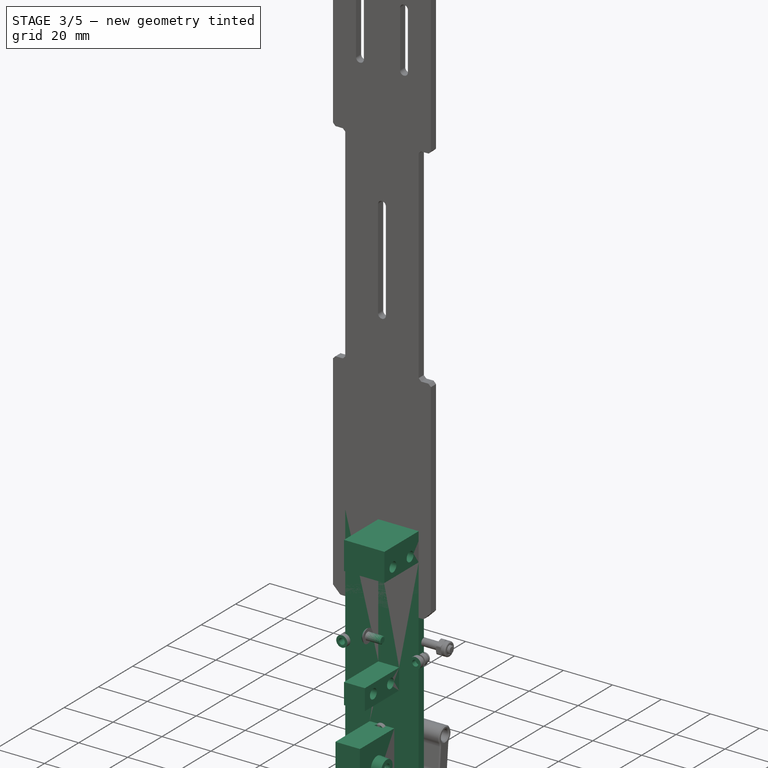
[diagram: stage 3 of 5 — iso view after this stage's code; geometry added in this stage tinted green]
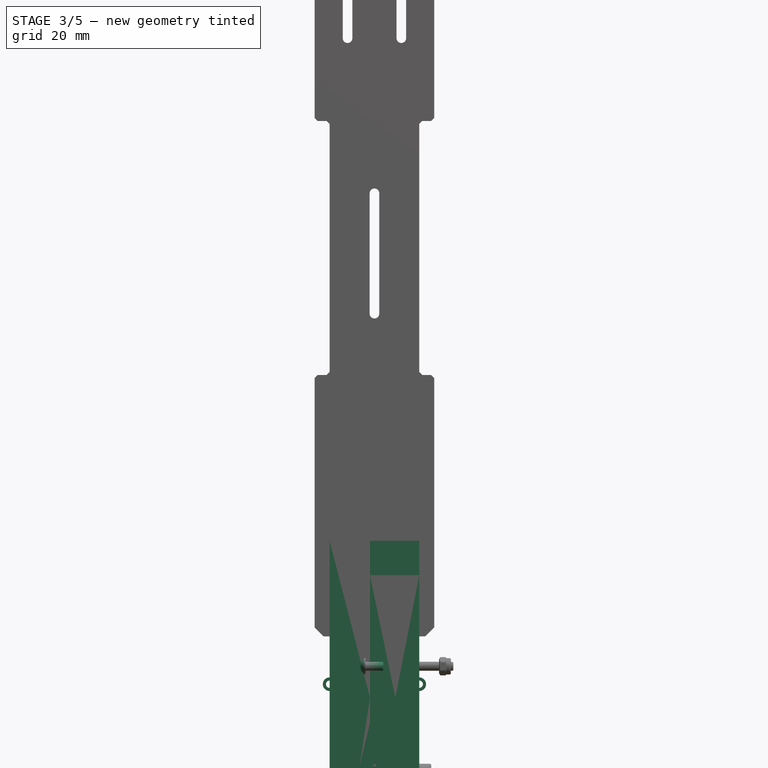
[diagram: stage 3 of 5 — front view after this stage's code; geometry added in this stage tinted green]
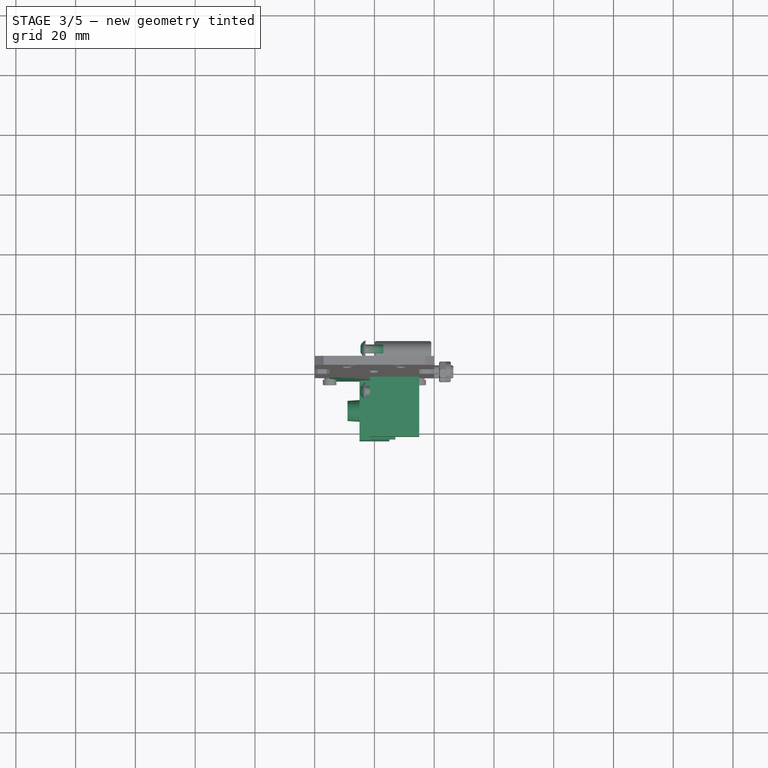
[diagram: stage 3 of 5 — top view after this stage's code; geometry added in this stage tinted green]
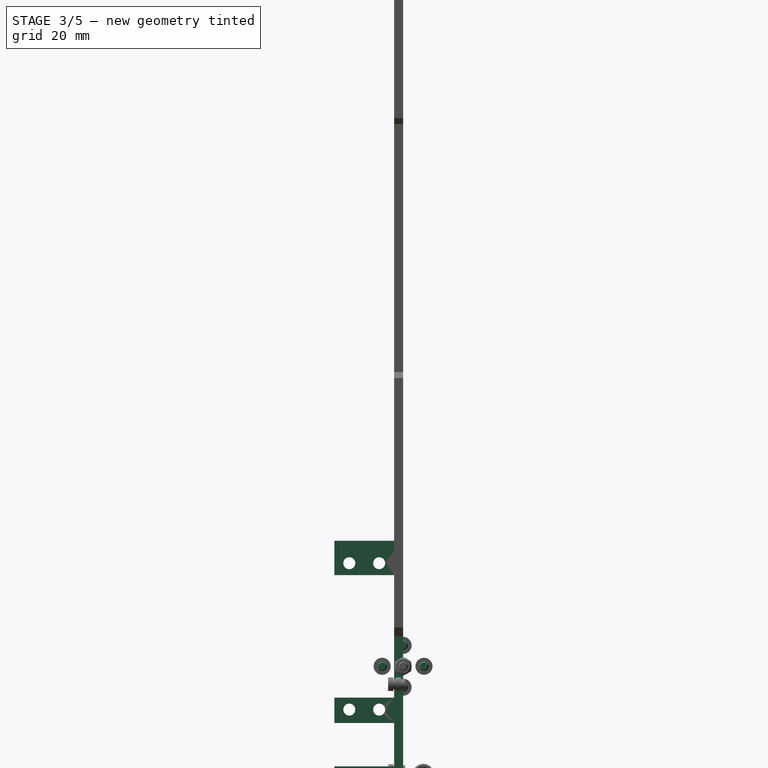
[diagram: stage 3 of 5 — right view after this stage's code; geometry added in this stage tinted green]
FEATURE [App::Link] Link  label="Link(ServoMG996R001)"
  AutoLinkLabel = true
  AutoPlacement = true
  LinkPlacement = pos=(0,0,0) rot=(1,0,0;1.5708rad)
  LinkedObject = -> <external ../mechanical-parts/generic-hardware.FCStd>#Part015
  Placement = pos=(0,0,0) rot=(1,0,0;1.5708rad)
  SyncGroupVisibility = false
  TreeRank = 48
  _LinkVersion = 1
FEATURE [App::Link] Link001  label="Link001(ServoPalonnier)"
  AutoLinkLabel = true
  AutoPlacement = true
  LinkPlacement = pos=(0,0,0) rot=(0.577,-0.577,0.577;2.0944rad)
  LinkedObject = -> <external ../mechanical-parts/generic-hardware.FCStd>#Body042
  Placement = pos=(0,0,0) rot=(0.577,-0.577,0.577;2.0944rad)
  SyncGroupVisibility = false
  TreeRank = 49
  _LinkVersion = 1
FEATURE [App::Part] Part001  label="EnsembleServo"
  ClaimAllChildren = false
  ExportMode = 1
  Group = -> [Link001,Link]
  Origin = -> Origin002
  Placement = pos=(-20,-16,115) rot=(0.57735,0.57735,-0.57735;2.0944rad)
  TreeRank = 52
  _ExportChildren = -> [Link001,Link]
  _GroupVersion = 1
FEATURE [Sketcher::SketchObject] Sketch002
  ArcFitTolerance = 1e-06
  ExternalBSplineMaxDegree = 5
  ExternalBSplineTolerance = 0.0001
  FixShape = 1
  FullyConstrained = false
  InternalTolerance = 1e-06
  InvalidShape = false
  MakeInternals = false
  Placement = pos=(0,0,0) rot=(0.57735,0.57735,0.57735;2.0944rad)
  TreeRank = 53
  ValidateShape = false
  sketch-geometry (12):
    g0: LineSegment StartX=-16 StartY=115 StartZ=0 EndX=-92.1029 EndY=97.9017 EndZ=0
    g1: LineSegment StartX=-16 StartY=71.5 StartZ=0 EndX=-92.1029 EndY=54.4017 EndZ=0
    g2: LineSegment [constr] StartX=-17.6441 StartY=78.8176 StartZ=0 EndX=-93.7469 EndY=61.7193 EndZ=0
    g3: LineSegment [constr] StartX=-14.3559 StartY=64.1824 StartZ=0 EndX=-90.4588 EndY=47.0841 EndZ=0
    g4: LineSegment [constr] StartX=-14.3559 StartY=64.1824 StartZ=0 EndX=-17.6441 EndY=78.8176 EndZ=0
    g5: LineSegment [constr] StartX=0 StartY=-13.5 StartZ=0 EndX=-124.979 EndY=-13.5 EndZ=0
    g6: LineSegment [constr] StartX=-124.979 StartY=-13.5 StartZ=0 EndX=-102.979 EndY=-13.5 EndZ=0
    g7: LineSegment [constr] StartX=-102.979 StartY=-13.5 StartZ=0 EndX=-102.979 EndY=56.5 EndZ=0
    g8: LineSegment [constr] StartX=-102.979 StartY=56.5 StartZ=0 EndX=-124.979 EndY=56.5 EndZ=0
    g9: LineSegment [constr] StartX=-124.979 StartY=56.5 StartZ=0 EndX=-124.979 EndY=-13.5 EndZ=0
    g10: LineSegment StartX=-92.1029 StartY=97.9017 StartZ=0 EndX=-92.1029 EndY=54.4017 EndZ=0
    g11: GeomPoint [constr] X=-43 Y=0 Z=0
  constraints (39):
    c: Equal(g0,g1)
    c: Parallel(g0,g1)
    c: Distance(g0) = 78
    c: Vertical(g0,g1)
    c: DistanceX(g0,g-1) = 16
    c: Equal(g3,g2)
    c: Equal(g2,g1)
    c: Parallel(g3,g1)
    c: Parallel(g1,g2)
    c: Coincident(g4,g3)
    c: Coincident(g4,g2)
    c: Perpendicular(g3,g4)
    c: Symmetric(g3,g2,g1)
    c: Distance(g4) = 15
    c: PointOnObject(g5,g-2)
    c: Horizontal(g5)
    c: DistanceY(g5,g-1) = 13.5
    c: Coincident(g6,g7)
    c: Coincident(g7,g8)
    c: Coincident(g8,g9)
    c: Coincident(g9,g6)
    c: Horizontal(g6)
    c: Horizontal(g8)
    c: Vertical(g7)
    c: Vertical(g9)
    c: Coincident(g6,g5)
    c: DistanceX(g8,g8) = 22
    c: DistanceY(g9,g9) = 70
    c: Coincident(g10,g0)
    c: Coincident(g10,g1)
    c: DistanceY(g-1,g0) = 115
    c: DistanceY(g5,g1) = 85
    c: PointOnObject(g11,g-1)
    c: DistanceX(g11,g-1) = 43
    c: DistanceX(g1,g11) = 49.1029
    c: DistanceY(g1,g0) = 43.5
    c: Angle(g0,g-2) = 1.34979  'AngleBras'
    c: DistanceY(g0) = 97.9017  'ZSupport'
    c: DistanceX(g0,g-1) = 92.1029  'YSupport'
FEATURE [Part::SubShapeBinder] Import  label="Import(Sketch002)"
  BindCopyOnChange = 0
  BindMode = 0
  ClaimChildren = false
  Context = -> Part [Part005.Body.Import.]
  EdgeTolerance = 1e-06
  FillStyle = 0
  FixShape = 1
  Fuse = false
  InvalidShape = false
  MakeFace = false
  MergeEdges = true
  OffsetFill = false
  OffsetIntersection = false
  OffsetJoinType = 0
  OffsetOpenResult = false
  Outline = false
  PartialLoad = false
  Relative = true
  SplitEdges = false
  Support = -> [Sketch002]
  TightBound = false
  TreeRank = 66
  ValidateShape = false
  _Version = 8
FEATURE [Sketcher::SketchObject] Sketch003
  ArcFitTolerance = 1e-06
  AttachmentSupport = -> [XZ_Plane]
  ExternalBSplineMaxDegree = 5
  ExternalBSplineTolerance = 0.0001
  ExternalGeometry = -> [Import]
  FixShape = 1
  FullyConstrained = true
  InternalTolerance = 1e-06
  InvalidShape = false
  MakeInternals = false
  MapMode = 5
  Placement = pos=(0,0,0) rot=(1,0,0;1.5708rad)
  Support = -> [XZ_Plane]
  TreeRank = 65
  ValidateShape = false
  sketch-geometry (8):
    g0: LineSegment StartX=-15 StartY=37 StartZ=0 EndX=15 EndY=37 EndZ=0
    g1: LineSegment StartX=15 StartY=37 StartZ=0 EndX=15 EndY=-17 EndZ=0
    g2: LineSegment [constr] StartX=15 StartY=-17 StartZ=0 EndX=-15 EndY=-17 EndZ=0
    g3: LineSegment StartX=-15 StartY=-17 StartZ=0 EndX=-15 EndY=37 EndZ=0
    g4: LineSegment [constr] StartX=-15 StartY=-17 StartZ=0 EndX=15 EndY=-17 EndZ=0
    g5: LineSegment StartX=15 StartY=-17 StartZ=0 EndX=15 EndY=-53.5 EndZ=0
    g6: LineSegment StartX=15 StartY=-53.5 StartZ=0 EndX=-15 EndY=-53.5 EndZ=0
    g7: LineSegment StartX=-15 StartY=-53.5 StartZ=0 EndX=-15 EndY=-17 EndZ=0
  constraints (22):
    c: Coincident(g0,g1)
    c: Coincident(g1,g2)
    c: Coincident(g2,g3)
    c: Coincident(g3,g0)
    c: Horizontal(g2)
    c: Vertical(g1)
    c: Vertical(g3)
    c: Symmetric(g0,g0,g-2)
    c: DistanceX(g2,g2) = 30
    c: DistanceY(g1,g-1) = 17
    c: DistanceY(g-1,g0) = 37
    c: Coincident(g4,g5)
    c: Coincident(g5,g6)
    c: Coincident(g6,g7)
    c: Coincident(g7,g4)
    c: Horizontal(g6)
    c: Vertical(g5)
    c: Vertical(g7)
    c: PointOnObject(g4,g2)
    c: Symmetric(g4,g4,g-2)
    c: DistanceX(g6,g6) = 30
    c: DistanceY(g5,g-3) = 10
FEATURE [PartDesign::Pad] Pad001
  AddSubType = 0
  AlongSketchNormal = false
  AutoTaperInnerAngle = true
  CheckUpToFaceLimits = true
  ClaimChildren = false
  Direction = (0,-1,-2e-16)
  Fit = 0
  FitJoin = 0
  FixShape = 1
  InnerFit = 0
  InnerFitJoin = 0
  InvalidShape = false
  Length = 3
  Length2 = 10
  Linearize = true
  NewSolid = false
  Profile = -> Sketch003
  ReferenceAxis = -> Sketch003 [N_Axis]
  Refine = true
  Suppress = false
  TaperInnerAngle = 0
  TaperInnerAngleRev = 0
  TreeRank = 67
  Type = 0
  ValidateShape = false
  _ProfileBasedVersion = 1
FEATURE [Sketcher::SketchObject] Sketch004
  ArcFitTolerance = 1e-06
  AttachmentSupport = -> [Pad001]
  ExternalBSplineMaxDegree = 5
  ExternalBSplineTolerance = 0.0001
  ExternalGeometry = -> [Pad001]
  FixShape = 1
  FullyConstrained = true
  InternalTolerance = 1e-06
  InvalidShape = false
  MakeInternals = false
  MapMode = 5
  Placement = pos=(0,-3,0) rot=(1,0,0;1.5708rad)
  Support = -> [Pad001]
  TreeRank = 68
  ValidateShape = false
  sketch-geometry (8):
    g0: LineSegment StartX=15 StartY=37 StartZ=0 EndX=-1.5 EndY=37 EndZ=0
    g1: LineSegment StartX=-1.5 StartY=37 StartZ=0 EndX=-1.5 EndY=30.5 EndZ=0
    g2: LineSegment StartX=-1.5 StartY=30.5 StartZ=0 EndX=15 EndY=30.5 EndZ=0
    g3: LineSegment StartX=15 StartY=30.5 StartZ=0 EndX=15 EndY=37 EndZ=0
    g4: LineSegment StartX=7 StartY=-17 StartZ=0 EndX=-1.5 EndY=-17 EndZ=0
    g5: LineSegment StartX=-1.5 StartY=-17 StartZ=0 EndX=-1.5 EndY=-10.5 EndZ=0
    g6: LineSegment StartX=-1.5 StartY=-10.5 StartZ=0 EndX=7 EndY=-10.5 EndZ=0
    g7: LineSegment StartX=7 StartY=-10.5 StartZ=0 EndX=7 EndY=-17 EndZ=0
  constraints (24):
    c: Coincident(g0,g1)
    c: Coincident(g1,g2)
    c: Coincident(g2,g3)
    c: Coincident(g3,g0)
    c: Horizontal(g0)
    c: Horizontal(g2)
    c: Vertical(g1)
    c: Vertical(g3)
    c: Coincident(g0,g-4)
    c: Coincident(g4,g5)
    c: Coincident(g5,g6)
    c: Coincident(g6,g7)
    c: Coincident(g7,g4)
    c: Horizontal(g4)
    c: Horizontal(g6)
    c: Vertical(g5)
    c: Vertical(g7)
    c: DistanceY(g3,g3) = 6.5
    c: DistanceY(g4,g0) = 54
    c: DistanceY(g7,g7) = 6.5
    c: Vertical(g1,g5)
    c: DistanceX(g0,g0) = 16.5
    c: DistanceX(g6,g2) = 8
    c: DistanceX(g6,g6) = 8.5
FEATURE [PartDesign::Pad] Pad002
  AddSubType = 0
  AlongSketchNormal = false
  AutoTaperInnerAngle = true
  BaseFeature = -> Pad001
  CheckUpToFaceLimits = true
  ClaimChildren = false
  Direction = (0,-1,2e-16)
  Fit = 0
  FitJoin = 0
  FixShape = 1
  InnerFit = 0
  InnerFitJoin = 0
  InvalidShape = false
  Length = 20
  Length2 = 10
  Linearize = true
  NewSolid = false
  Profile = -> Sketch004
  ReferenceAxis = -> Sketch004 [N_Axis]
  Refine = true
  Suppress = false
  TaperInnerAngle = 0
  TaperInnerAngleRev = 0
  TreeRank = 69
  Type = 0
  ValidateShape = false
  _ProfileBasedVersion = 1
FEATURE [Sketcher::SketchObject] Sketch005
  ArcFitTolerance = 1e-06
  AttachmentSupport = -> [Pad002]
  ExternalBSplineMaxDegree = 5
  ExternalBSplineTolerance = 0.0001
  ExternalGeometry = -> [Pad002]
  FixShape = 1
  FullyConstrained = true
  InternalTolerance = 1e-06
  InvalidShape = false
  MakeInternals = false
  MapMode = 5
  Placement = pos=(0,-3,0) rot=(1,0,0;1.5708rad)
  Support = -> [Pad002]
  TreeRank = 70
  ValidateShape = false
  sketch-geometry (4):
    g0: LineSegment StartX=-5 StartY=-53.5 StartZ=0 EndX=5 EndY=-53.5 EndZ=0
    g1: LineSegment StartX=5 StartY=-53.5 StartZ=0 EndX=5 EndY=-33.5 EndZ=0
    g2: LineSegment StartX=5 StartY=-33.5 StartZ=0 EndX=-5 EndY=-33.5 EndZ=0
    g3: LineSegment StartX=-5 StartY=-33.5 StartZ=0 EndX=-5 EndY=-53.5 EndZ=0
  constraints (11):
    c: Coincident(g0,g1)
    c: Coincident(g1,g2)
    c: Coincident(g2,g3)
    c: Coincident(g3,g0)
    c: Horizontal(g2)
    c: Vertical(g1)
    c: Vertical(g3)
    c: PointOnObject(g0,g-3)
    c: Symmetric(g0,g0,g-2)
    c: DistanceX(g2,g2) = 10
    c: DistanceY(g1,g1) = 20
FEATURE [PartDesign::Pad] Pad003
  AddSubType = 0
  AlongSketchNormal = false
  AutoTaperInnerAngle = true
  BaseFeature = -> Pad002
  CheckUpToFaceLimits = true
  ClaimChildren = false
  Direction = (0,-1,2e-16)
  Fit = 0
  FitJoin = 0
  FixShape = 1
  InnerFit = 0
  InnerFitJoin = 0
  InvalidShape = false
  Length = 20
  Length2 = 10
  Linearize = true
  NewSolid = false
  Profile = -> Sketch005
  ReferenceAxis = -> Sketch005 [N_Axis]
  Refine = true
  Suppress = false
  TaperInnerAngle = 0
  TaperInnerAngleRev = 0
  TreeRank = 71
  Type = 0
  ValidateShape = false
  _ProfileBasedVersion = 1
FEATURE [Sketcher::SketchObject] Sketch006
  ArcFitTolerance = 1e-06
  AttachmentSupport = -> [YZ_Plane]
  ExternalBSplineMaxDegree = 5
  ExternalBSplineTolerance = 0.0001
  ExternalGeometry = -> [Pad003]
  FixShape = 1
  FullyConstrained = true
  InternalTolerance = 1e-06
  InvalidShape = false
  MakeInternals = false
  MapMode = 5
  Placement = pos=(0,0,0) rot=(0.57735,0.57735,0.57735;2.0944rad)
  Support = -> [YZ_Plane]
  TreeRank = 72
  ValidateShape = false
  sketch-geometry (1):
    g0: Circle CenterX=-13 CenterY=-43.5 CenterZ=0 NormalX=0 NormalY=0 NormalZ=1 AngleXU=0 Radius=4
  constraints (2):
    c: Symmetric(g-4,g-3,g0)
    c: Diameter(g0) = 8
FEATURE [PartDesign::Pad] Pad004
  AddSubType = 0
  AlongSketchNormal = false
  AutoTaperInnerAngle = true
  BaseFeature = -> Pad003
  CheckUpToFaceLimits = true
  ClaimChildren = false
  Direction = (1,-2e-16,3e-16)
  Fit = 0
  FitJoin = 0
  FixShape = 1
  InnerFit = 0
  InnerFitJoin = 0
  InvalidShape = false
  Length = 18
  Length2 = 10
  Linearize = true
  Midplane = true
  NewSolid = false
  Profile = -> Sketch006
  ReferenceAxis = -> Sketch006 [N_Axis]
  Refine = true
  Suppress = false
  TaperAngle = -4
  TaperInnerAngle = 0
  TaperInnerAngleRev = 0
  TreeRank = 73
  Type = 0
  ValidateShape = false
  _ProfileBasedVersion = 1
FEATURE [Sketcher::SketchObject] Sketch007
  ArcFitTolerance = 1e-06
  AttachmentSupport = -> [YZ_Plane]
  ExternalBSplineMaxDegree = 5
  ExternalBSplineTolerance = 0.0001
  ExternalGeometry = -> [Pad004]
  FixShape = 1
  FullyConstrained = true
  InternalTolerance = 1e-06
  InvalidShape = false
  MakeInternals = false
  MapMode = 5
  Placement = pos=(0,0,0) rot=(0.57735,0.57735,0.57735;2.0944rad)
  Support = -> [YZ_Plane]
  TreeRank = 74
  ValidateShape = false
  sketch-geometry (1):
    g0: Circle CenterX=-13 CenterY=-43.5 CenterZ=0 NormalX=0 NormalY=0 NormalZ=1 AngleXU=0 Radius=1.75
  constraints (2):
    c: Coincident(g0,g-3)
    c: Diameter(g0) = 3.5
FEATURE [PartDesign::Pocket] Pocket001
  AddSubType = 1
  AlongSketchNormal = false
  AutoTaperInnerAngle = true
  BaseFeature = -> Pad004
  CheckUpToFaceLimits = true
  ClaimChildren = false
  Direction = (-1,2e-16,-3e-16)
  Fit = 0
  FitJoin = 0
  FixShape = 1
  InnerFit = 0
  InnerFitJoin = 0
  InvalidShape = false
  Length = 5
  Length2 = 10
  Linearize = true
  Midplane = true
  NewSolid = false
  Profile = -> Sketch007
  ReferenceAxis = -> Sketch007 [N_Axis]
  Refine = true
  Suppress = false
  TaperInnerAngle = 0
  TaperInnerAngleRev = 0
  TreeRank = 75
  Type = 1
  ValidateShape = false
  _ProfileBasedVersion = 1
  _Version = 1
FEATURE [Sketcher::SketchObject] Sketch008
  ArcFitTolerance = 1e-06
  AttachmentSupport = -> [YZ_Plane]
  ExternalBSplineMaxDegree = 5
  ExternalBSplineTolerance = 0.0001
  ExternalGeometry = -> [Pocket001]
  FixShape = 1
  FullyConstrained = true
  InternalTolerance = 1e-06
  InvalidShape = false
  MakeInternals = false
  MapMode = 5
  Placement = pos=(0,0,0) rot=(0.57735,0.57735,0.57735;2.0944rad)
  Support = -> [YZ_Plane]
  TreeRank = 76
  ValidateShape = false
  sketch-geometry (9):
    g0: LineSegment [constr] StartX=-8 StartY=-14.5 StartZ=0 EndX=-8 EndY=34.5 EndZ=0
    g1: LineSegment [constr] StartX=-8 StartY=34.5 StartZ=0 EndX=-18 EndY=34.5 EndZ=0
    g2: LineSegment [constr] StartX=-18 StartY=34.5 StartZ=0 EndX=-18 EndY=-14.5 EndZ=0
    g3: LineSegment [constr] StartX=-18 StartY=-14.5 StartZ=0 EndX=-8 EndY=-14.5 EndZ=0
    g4: GeomPoint [constr] X=-13 Y=10 Z=0
    g5: Circle CenterX=-8 CenterY=34.5 CenterZ=0 NormalX=0 NormalY=0 NormalZ=1 AngleXU=0 Radius=2
    g6: Circle CenterX=-18 CenterY=34.5 CenterZ=0 NormalX=0 NormalY=0 NormalZ=1 AngleXU=0 Radius=2
    g7: Circle CenterX=-18 CenterY=-14.5 CenterZ=0 NormalX=0 NormalY=0 NormalZ=1 AngleXU=0 Radius=2
    g8: Circle CenterX=-8 CenterY=-14.5 CenterZ=0 NormalX=0 NormalY=0 NormalZ=1 AngleXU=0 Radius=2
  constraints (20):
    c: Coincident(g0,g1)
    c: Coincident(g1,g2)
    c: Coincident(g2,g3)
    c: Coincident(g3,g0)
    c: Horizontal(g1)
    c: Horizontal(g3)
    c: Vertical(g0)
    c: Vertical(g2)
    c: Symmetric(g1,g0,g4)
    c: DistanceX(g1,g1) = 10
    c: DistanceY(g2,g2) = 49
    c: Symmetric(g-4,g-3,g4)
    c: Coincident(g5,g0)
    c: Coincident(g6,g1)
    c: Coincident(g7,g2)
    c: Coincident(g8,g0)
    c: Equal(g7,g8)
    c: Equal(g7,g5)
    c: Equal(g7,g6)
    c: Diameter(g7) = 4
FEATURE [PartDesign::Pocket] Pocket002
  AddSubType = 1
  AlongSketchNormal = false
  AutoTaperInnerAngle = true
  BaseFeature = -> Pocket001
  CheckUpToFaceLimits = true
  ClaimChildren = false
  Direction = (-1,2e-16,-3e-16)
  Fit = 0
  FitJoin = 0
  FixShape = 1
  InnerFit = 0
  InnerFitJoin = 0
  InvalidShape = false
  Length = 5
  Length2 = 10
  Linearize = true
  Midplane = true
  NewSolid = false
  Profile = -> Sketch008
  ReferenceAxis = -> Sketch008 [N_Axis]
  Refine = true
  Suppress = false
  TaperInnerAngle = 0
  TaperInnerAngleRev = 0
  TreeRank = 77
  Type = 1
  ValidateShape = false
  _ProfileBasedVersion = 1
  _Version = 1
FEATURE [PartDesign::Pad] Pad005
  AddSubType = 0
  AlongSketchNormal = false
  AutoTaperInnerAngle = true
  BaseFeature = -> Pocket002
  CheckUpToFaceLimits = true
  ClaimChildren = false
  Direction = (0,-2e-16,-1)
  Fit = 0
  FitJoin = 0
  FixShape = 1
  InnerFit = 0
  InnerFitJoin = 0
  InvalidShape = false
  Length = 2
  Length2 = 10
  Linearize = true
  NewSolid = false
  Profile = -> Pocket002 [Face13]
  Refine = true
  Suppress = false
  TaperInnerAngle = 0
  TaperInnerAngleRev = 0
  TreeRank = 78
  Type = 0
  ValidateShape = false
  _ProfileBasedVersion = 1
FEATURE [PartDesign::Pad] Pad006
  AddSubType = 0
  AlongSketchNormal = false
  AutoTaperInnerAngle = true
  BaseFeature = -> Pad005
  CheckUpToFaceLimits = true
  ClaimChildren = false
  Direction = (0,3e-16,1)
  Fit = 0
  FitJoin = 0
  FixShape = 1
  InnerFit = 0
  InnerFitJoin = 0
  InvalidShape = false
  Length = 5
  Length2 = 10
  Linearize = true
  NewSolid = false
  Profile = -> Pad005 [Face4]
  Refine = true
  Suppress = false
  TaperInnerAngle = 0
  TaperInnerAngleRev = 0
  TreeRank = 79
  Type = 0
  ValidateShape = false
  _ProfileBasedVersion = 1
FEATURE [Spreadsheet::Sheet] Spreadsheet
  PythonMode = false
  ShowCells = 0
  TreeRank = 141
  cells = A2=Angle Bras :; B2(AngleBras)==Sketch002.Constraints.AngleBras; A3=ZSupport; B3(ZSupport)==Sketch002.Constraints.ZSupport; A4=YSupport; B4(YSupport)==Sketch002.Constraints.YSupport
FEATURE [App::DocumentObjectGroup] Group001  label="Tools"
  ClaimAllChildren = true
  ExportMode = 1
  Group = -> [Sketch002,Spreadsheet]
  TreeRank = 64
  _GroupVersion = 1
FEATURE [Part::FeaturePython] Screw016  label="M3x6-Vis"  # Fasteners workbench fastener (typed FeaturePython)
  FixShape = 1
  InvalidShape = false
  Placement = pos=(-3,2.8e-15,7) rot=(0,-1,0;1.5708rad)
  TreeRank = 149
  ValidateShape = false
  baseObject = -> Body002 [Edge32]
  diameter = 1
  invert = true
  leftHanded = false
  length = 0
  lengthCustom = 6
  matchOuter = false
  offset = 0
  thread = false
  type = 54
FEATURE [Part::FeaturePython] Screw017  label="M3x6-Vis019"  # Fasteners workbench fastener (typed FeaturePython)
  FixShape = 1
  InvalidShape = false
  Placement = pos=(-3,-7,1.2e-15) rot=(0,-1,0;1.5708rad)
  TreeRank = 150
  ValidateShape = false
  baseObject = -> Body002 [Edge29]
  diameter = 1
  invert = true
  leftHanded = false
  length = 0
  lengthCustom = 6
  matchOuter = false
  offset = 0
  thread = false
  type = 54
FEATURE [Part::FeaturePython] Screw018  label="M3x6-Vis020"  # Fasteners workbench fastener (typed FeaturePython)
  FixShape = 1
  InvalidShape = false
  Placement = pos=(-3,-9e-16,-7) rot=(0,-1,0;1.5708rad)
  TreeRank = 151
  ValidateShape = false
  baseObject = -> Body002 [Edge30]
  diameter = 1
  invert = true
  leftHanded = false
  length = 0
  lengthCustom = 6
  matchOuter = false
  offset = 0
  thread = false
  type = 54
FEATURE [Part::FeaturePython] Screw019  label="M3x6-Vis021"  # Fasteners workbench fastener (typed FeaturePython)
  FixShape = 1
  InvalidShape = false
  Placement = pos=(-3,7,-2.7e-15) rot=(0,-1,0;1.5708rad)
  TreeRank = 152
  ValidateShape = false
  baseObject = -> Body002 [Edge31]
  diameter = 1
  invert = true
  leftHanded = false
  length = 0
  lengthCustom = 6
  matchOuter = false
  offset = 0
  thread = false
  type = 54
FEATURE [PartDesign::Body] Body003  label="SupportPince"
  AutoGroupSolids = false
  ClaimAllChildren = false
  ExportMode = 0
  FixShape = 1
  Group = -> [Sketch013,Pad009,Sketch014,Pocket005,Sketch015,Pad010,Chamfer006,Chamfer007,Fillet004,Chamfer008,Fillet005,Chamfer009,Sketch016,Pocket006,Chamfer010,Chamfer011]
  InvalidShape = false
  Origin = -> Origin006
  SingleSolid = true
  Tip = -> Chamfer011
  TreeRank = 164
  ValidateShape = false
  _ExportChildren = -> [Pad009,Pocket005,Pad010,Chamfer006,Chamfer007,Fillet004,Chamfer008,Fillet005,Chamfer009,Pocket006,Chamfer010,Chamfer011]
  _GroupVersion = 1
  expr: Placement.Base.z = 0
FEATURE [Part::FeaturePython] Insert008  label="M3-Insert252"  # Fasteners workbench fastener (typed FeaturePython)
  FixShape = 1
  InvalidShape = false
  Placement = pos=(-15,-5,-6) rot=(1,0,0;1.5708rad)
  TreeRank = 187
  ValidateShape = false
  baseObject = -> Body003 [Edge31]
  diameter = 3
  externalDiam = 4.55
  invert = false
  leftHanded = false
  length = 5.74
  matchOuter = false
  offset = 0
  thread = false
  type = 30
FEATURE [Part::FeaturePython] Insert009  label="M3-Insert253"  # Fasteners workbench fastener (typed FeaturePython)
  FixShape = 1
  InvalidShape = false
  Placement = pos=(15,-5,-6) rot=(1,0,0;1.5708rad)
  TreeRank = 188
  ValidateShape = false
  baseObject = -> Body003 [Edge30]
  diameter = 3
  externalDiam = 4.55
  invert = false
  leftHanded = false
  length = 5.74
  matchOuter = false
  offset = 0
  thread = false
  type = 30
FEATURE [Part::FeaturePython] Insert010  label="M3-Insert254"  # Fasteners workbench fastener (typed FeaturePython)
  FixShape = 1
  InvalidShape = false
  Placement = pos=(1.78e-14,-5,-35) rot=(1,0,0;1.5708rad)
  TreeRank = 189
  ValidateShape = false
  baseObject = -> Body003 [Edge7]
  diameter = 3
  externalDiam = 4.55
  invert = false
  leftHanded = false
  length = 5.74
  matchOuter = false
  offset = 0
  thread = false
  type = 30
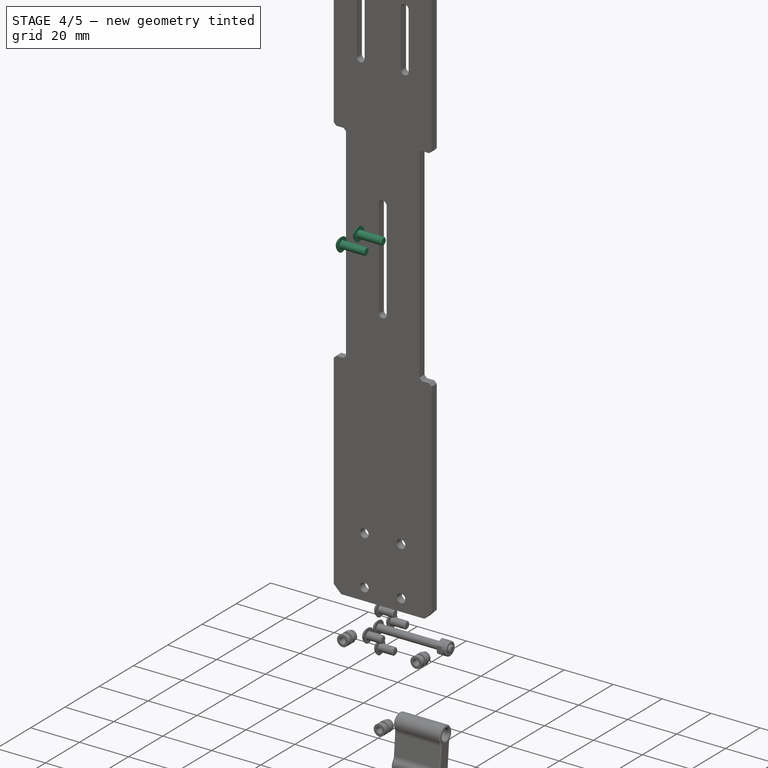
[diagram: stage 4 of 5 — iso view after this stage's code; geometry added in this stage tinted green]
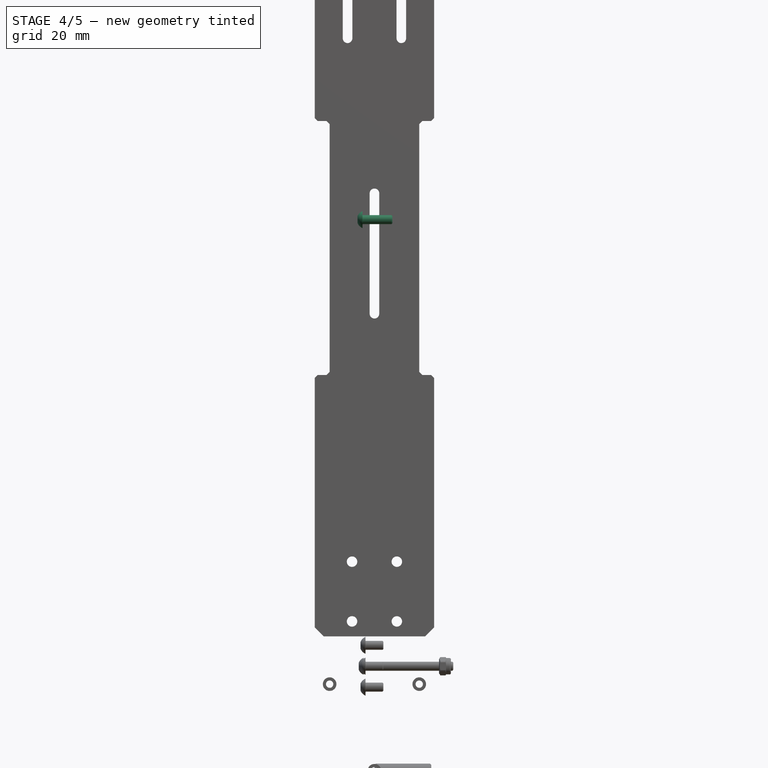
[diagram: stage 4 of 5 — front view after this stage's code; geometry added in this stage tinted green]
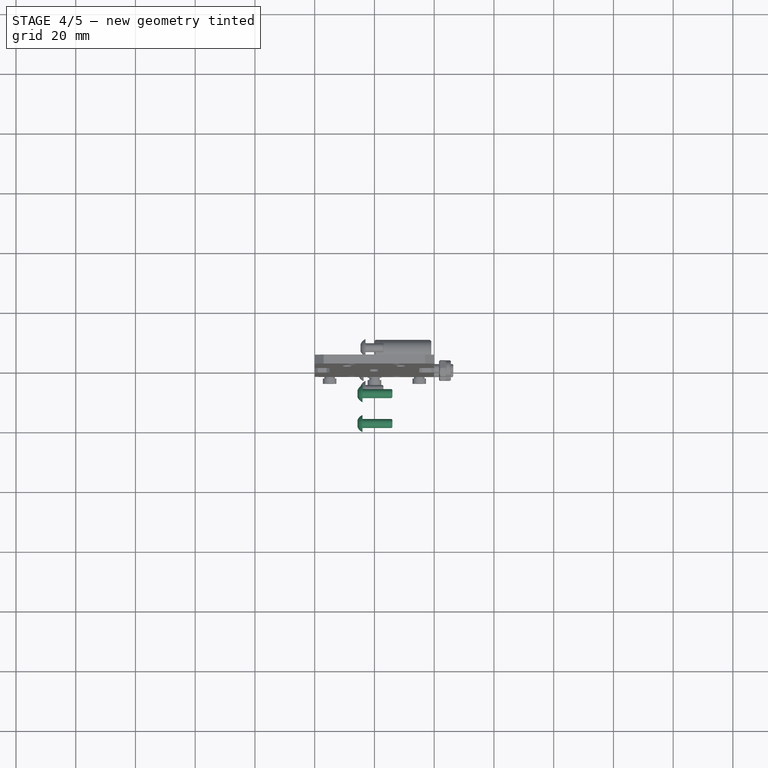
[diagram: stage 4 of 5 — top view after this stage's code; geometry added in this stage tinted green]
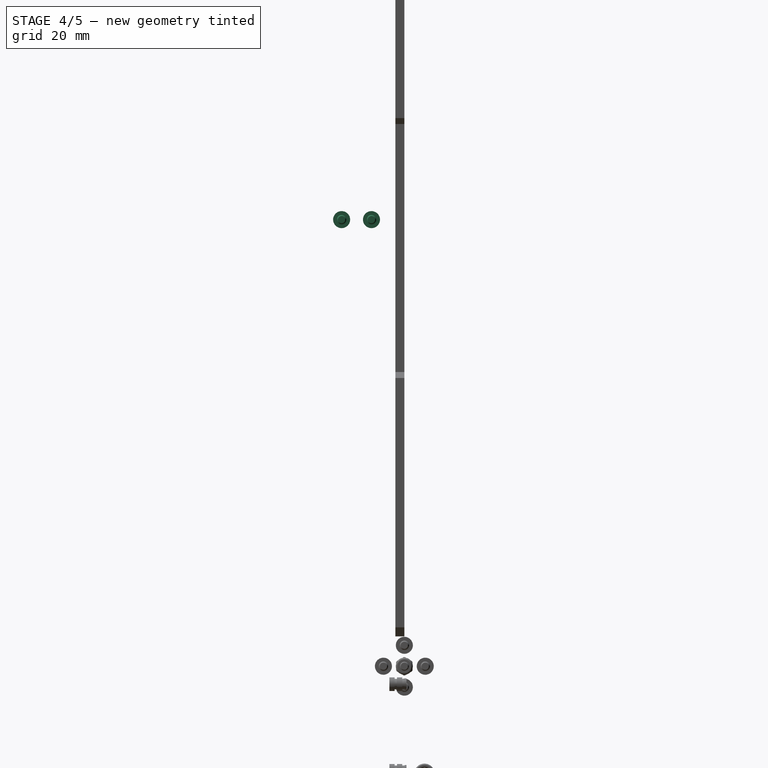
[diagram: stage 4 of 5 — right view after this stage's code; geometry added in this stage tinted green]
FEATURE [PartDesign::Draft] Draft
  AddSubType = 0
  Angle = 25
  Base = -> Pad006 [Face5]
  BaseFeature = -> Pad006
  FixShape = 1
  InvalidShape = false
  NeutralPlane = -> Pad006 [Face3]
  NewSolid = false
  Refine = true
  Reversed = true
  SupportTransform = false
  Suppress = false
  TreeRank = 88
  ValidateShape = false
FEATURE [PartDesign::Draft] Draft001
  AddSubType = 0
  Angle = 25
  Base = -> Draft [Face12]
  BaseFeature = -> Draft
  FixShape = 1
  InvalidShape = false
  NeutralPlane = -> Draft [Face26]
  NewSolid = false
  Refine = true
  SupportTransform = false
  Suppress = false
  TreeRank = 89
  ValidateShape = false
FEATURE [Sketcher::SketchObject] Sketch009
  ArcFitTolerance = 1e-06
  AttachmentSupport = -> [Draft001]
  ExternalBSplineMaxDegree = 5
  ExternalBSplineTolerance = 0.0001
  ExternalGeometry = -> [Draft001]
  FixShape = 1
  FullyConstrained = true
  InternalTolerance = 1e-06
  InvalidShape = false
  MakeInternals = false
  MapMode = 5
  Placement = pos=(-1.5,0,0) rot=(0.57735,-0.57735,-0.57735;2.0944rad)
  Support = -> [Draft001]
  TreeRank = 90
  ValidateShape = false
  sketch-geometry (3):
    g0: LineSegment StartX=23 StartY=42 StartZ=0 EndX=23 EndY=38 EndZ=0
    g1: LineSegment StartX=23 StartY=38 StartZ=0 EndX=3 EndY=38 EndZ=0
    g2: LineSegment StartX=3 StartY=38 StartZ=0 EndX=3 EndY=51.3262 EndZ=0
  constraints (8):
    c: Coincident(g0,g-3)
    c: Vertical(g0)
    c: Coincident(g1,g0)
    c: Horizontal(g1)
    c: Coincident(g2,g1)
    c: Coincident(g2,g-3)
    c: Vertical(g2)
    c: DistanceY(g0,g0) = 4
FEATURE [PartDesign::Pad] Pad007
  AddSubType = 0
  AlongSketchNormal = false
  AutoTaperInnerAngle = true
  BaseFeature = -> Draft001
  CheckUpToFaceLimits = true
  ClaimChildren = false
  Direction = (-1,0,0)
  Fit = 0
  FitJoin = 0
  FixShape = 1
  InnerFit = 0
  InnerFitJoin = 0
  InvalidShape = false
  Length = 10
  Length2 = 10
  Linearize = true
  NewSolid = false
  Profile = -> Sketch009
  ReferenceAxis = -> Sketch009 [N_Axis]
  Refine = true
  Suppress = false
  TaperInnerAngle = 0
  TaperInnerAngleRev = 0
  TreeRank = 91
  Type = 3
  UpToFace = -> Draft001 [Face11]
  ValidateShape = false
  _ProfileBasedVersion = 1
FEATURE [Sketcher::SketchObject] Sketch010
  ArcFitTolerance = 1e-06
  AttachmentSupport = -> [XZ_Plane]
  ExternalBSplineMaxDegree = 5
  ExternalBSplineTolerance = 0.0001
  ExternalGeometry = -> [Pad007]
  FixShape = 1
  FullyConstrained = true
  InternalTolerance = 1e-06
  InvalidShape = false
  MakeInternals = false
  MapMode = 5
  Placement = pos=(0,0,0) rot=(1,0,0;1.5708rad)
  Support = -> [XZ_Plane]
  TreeRank = 92
  ValidateShape = false
  sketch-geometry (4):
    g0: Circle CenterX=0 CenterY=-49.5 CenterZ=0 NormalX=0 NormalY=0 NormalZ=1 AngleXU=0 Radius=2.05
    g1: Circle CenterX=0 CenterY=-32.1738 CenterZ=0 NormalX=0 NormalY=0 NormalZ=1 AngleXU=0 Radius=2.05
    g2: Circle CenterX=9 CenterY=42.7251 CenterZ=0 NormalX=0 NormalY=0 NormalZ=1 AngleXU=0 Radius=2.05
    g3: Circle CenterX=-9 CenterY=42.7251 CenterZ=0 NormalX=0 NormalY=0 NormalZ=1 AngleXU=0 Radius=2.05
  constraints (11):
    c: PointOnObject(g0,g-2)
    c: PointOnObject(g1,g-2)
    c: Equal(g2,g3)
    c: Equal(g2,g1)
    c: Equal(g2,g0)
    c: Diameter(g2) = 4.1
    c: Symmetric(g2,g3,g-2)
    c: DistanceX(g3,g2) = 18
    c: DistanceY(g-4,g0) = 4
    c: DistanceY(g1,g-5) = 8
    c: DistanceY(g2,g-3) = 10
FEATURE [PartDesign::Pocket] Pocket003
  AddSubType = 1
  AlongSketchNormal = false
  AutoTaperInnerAngle = true
  BaseFeature = -> Pad007
  CheckUpToFaceLimits = true
  ClaimChildren = false
  Direction = (0,1,2e-16)
  Fit = 0
  FitJoin = 0
  FixShape = 1
  InnerFit = 0
  InnerFitJoin = 0
  InvalidShape = false
  Length = 12
  Length2 = 10
  Linearize = true
  NewSolid = false
  Profile = -> Sketch010
  ReferenceAxis = -> Sketch010 [N_Axis]
  Refine = true
  Reversed = true
  Suppress = false
  TaperInnerAngle = 0
  TaperInnerAngleRev = 0
  TreeRank = 93
  Type = 0
  ValidateShape = false
  _ProfileBasedVersion = 1
  _Version = 1
FEATURE [PartDesign::Fillet] Fillet
  AddSubType = 0
  Base = -> Pocket003 [Edge7,Edge1]
  BaseFeature = -> Pocket003
  FixShape = 1
  InvalidShape = false
  NewSolid = false
  Radius = 6
  Refine = true
  SupportTransform = false
  Suppress = false
  TreeRank = 94
  UseAllEdges = false
  ValidateShape = false
FEATURE [PartDesign::Fillet] Fillet001
  AddSubType = 0
  Base = -> Fillet [Edge70,Edge58,Edge67,Edge51]
  BaseFeature = -> Fillet
  FixShape = 1
  InvalidShape = false
  NewSolid = false
  Radius = 2
  Refine = true
  SupportTransform = false
  Suppress = false
  TreeRank = 114
  UseAllEdges = false
  ValidateShape = false
FEATURE [PartDesign::Fillet] Fillet002
  AddSubType = 0
  Base = -> Fillet001 [Edge54]
  BaseFeature = -> Fillet001
  FixShape = 1
  InvalidShape = false
  NewSolid = false
  Radius = 10
  Refine = true
  SupportTransform = false
  Suppress = false
  TreeRank = 115
  UseAllEdges = false
  ValidateShape = false
FEATURE [PartDesign::Fillet] Fillet003
  AddSubType = 0
  Base = -> Fillet002 [Edge43]
  BaseFeature = -> Fillet002
  FixShape = 1
  InvalidShape = false
  NewSolid = false
  Radius = 15.5
  Refine = true
  SupportTransform = false
  Suppress = false
  TreeRank = 116
  UseAllEdges = false
  ValidateShape = false
FEATURE [PartDesign::Chamfer] Chamfer002
  AddSubType = 0
  Angle = 45
  Base = -> Fillet003 [Edge37,Edge7]
  BaseFeature = -> Fillet003
  ChamferType = 0
  FixShape = 1
  FlipDirection = false
  InvalidShape = false
  NewSolid = false
  Refine = true
  Size = 1
  Size2 = 1
  SupportTransform = false
  Suppress = false
  TreeRank = 117
  UseAllEdges = false
  ValidateShape = false
FEATURE [PartDesign::Chamfer] Chamfer003
  AddSubType = 0
  Angle = 45
  Base = -> Chamfer002 [Edge109,Edge38,Edge107,Edge86]
  BaseFeature = -> Chamfer002
  ChamferType = 0
  FixShape = 1
  FlipDirection = false
  InvalidShape = false
  NewSolid = false
  Refine = true
  Size = 0.2
  Size2 = 1
  SupportTransform = false
  Suppress = false
  TreeRank = 118
  UseAllEdges = false
  ValidateShape = false
FEATURE [PartDesign::Chamfer] Chamfer004
  AddSubType = 0
  Angle = 45
  Base = -> Chamfer003 [Edge67,Edge68,Edge75,Edge76,Edge91,Edge90,Edge55,Edge54,Edge56,Edge53,Edge85,Edge84]
  BaseFeature = -> Chamfer003
  ChamferType = 0
  FixShape = 1
  FlipDirection = false
  InvalidShape = false
  NewSolid = false
  Refine = true
  Size = 1
  Size2 = 1
  SupportTransform = false
  Suppress = false
  TreeRank = 119
  UseAllEdges = false
  ValidateShape = false
FEATURE [PartDesign::Chamfer] Chamfer005
  AddSubType = 0
  Angle = 45
  Base = -> Chamfer004 [Edge35,Edge25,Edge75,Edge93,Edge91,Edge66,Edge50]
  BaseFeature = -> Chamfer004
  ChamferType = 0
  FixShape = 1
  FlipDirection = false
  InvalidShape = false
  NewSolid = false
  Refine = true
  Size = 0.5
  Size2 = 1
  SupportTransform = false
  Suppress = false
  TreeRank = 120
  UseAllEdges = false
  ValidateShape = false
FEATURE [Part::FeaturePython] Screw014  label="M3x10-Vis601"  # Fasteners workbench fastener (typed FeaturePython)
  FixShape = 1
  InvalidShape = false
  Placement = pos=(-4,-21,149.5) rot=(0,-1,0;1.5708rad)
  TreeRank = 127
  ValidateShape = false
  baseObject = -> Body [Edge127]
  diameter = 1
  invert = true
  leftHanded = false
  length = 2
  lengthCustom = 10
  matchOuter = false
  offset = 2.5
  thread = false
  type = 54
FEATURE [Part::FeaturePython] Screw015  label="M3x10-Vis602"  # Fasteners workbench fastener (typed FeaturePython)
  FixShape = 1
  InvalidShape = false
  Placement = pos=(-4,-11,149.5) rot=(0,-1,0;1.5708rad)
  TreeRank = 128
  ValidateShape = false
  baseObject = -> Body [Edge126]
  diameter = 1
  invert = true
  leftHanded = false
  length = 2
  lengthCustom = 10
  matchOuter = false
  offset = 2.5
  thread = false
  type = 54
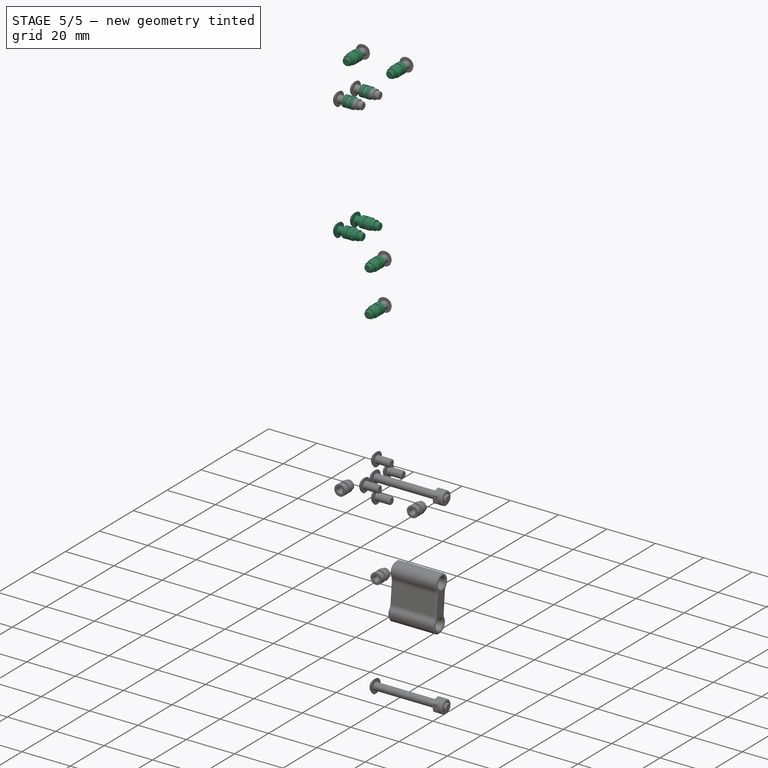
[diagram: stage 5 of 5 — iso view after this stage's code; geometry added in this stage tinted green]
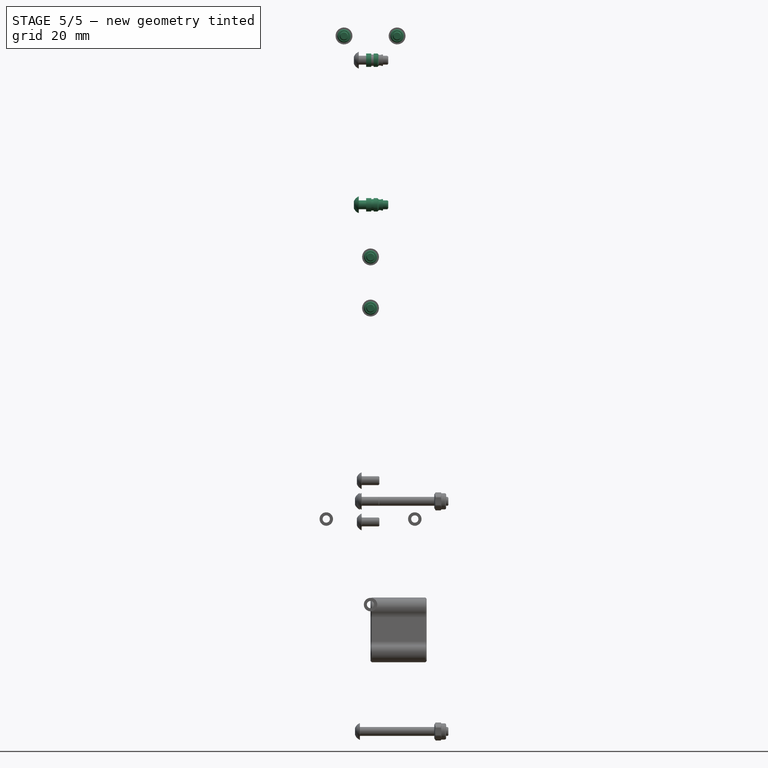
[diagram: stage 5 of 5 — front view after this stage's code; geometry added in this stage tinted green]
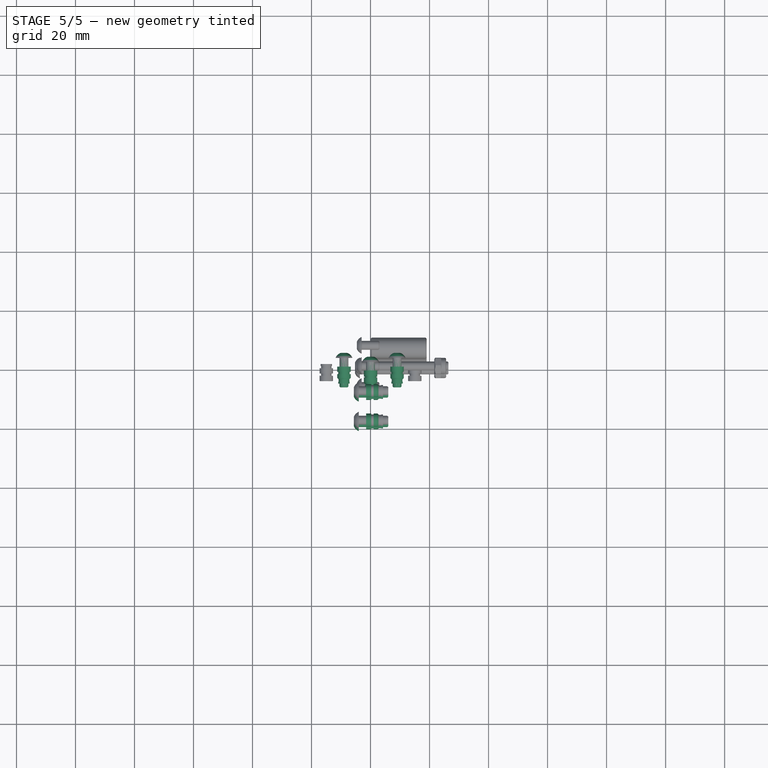
[diagram: stage 5 of 5 — top view after this stage's code; geometry added in this stage tinted green]
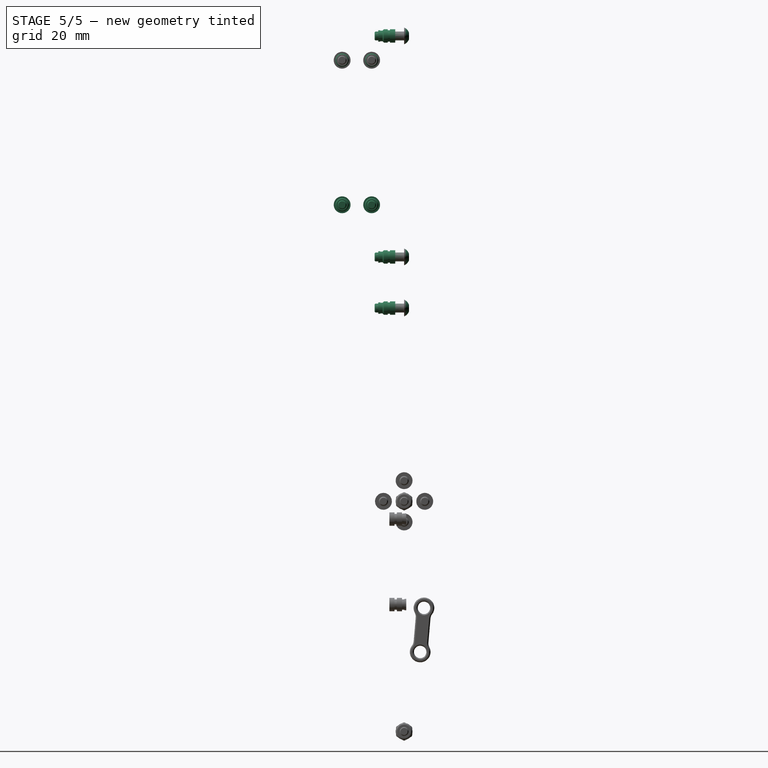
[diagram: stage 5 of 5 — right view after this stage's code; geometry added in this stage tinted green]
FEATURE [Part::FeaturePython] Insert  label="M3x5.74-Insert"  # Fasteners workbench fastener (typed FeaturePython)
  FixShape = 1
  InvalidShape = false
  Placement = pos=(-1.5,-21,149.5) rot=(0,-1,0;1.5708rad)
  TreeRank = 84
  ValidateShape = false
  baseObject = -> Body [?Edge6]
  diameter = 3
  externalDiam = 4.55
  invert = true
  leftHanded = false
  length = 5.74
  matchOuter = false
  offset = 0
  thread = false
  type = 30
FEATURE [Part::FeaturePython] Insert001  label="M3x5.74-Insert260"  # Fasteners workbench fastener (typed FeaturePython)
  FixShape = 1
  InvalidShape = false
  Placement = pos=(-1.5,-11,149.5) rot=(0,-1,0;1.5708rad)
  TreeRank = 85
  ValidateShape = false
  baseObject = -> Body [?Edge66]
  diameter = 3
  externalDiam = 4.55
  invert = true
  leftHanded = false
  length = 5.74
  matchOuter = false
  offset = 0
  thread = false
  type = 30
FEATURE [Part::FeaturePython] Insert002  label="M3x5.74-Insert261"  # Fasteners workbench fastener (typed FeaturePython)
  FixShape = 1
  InvalidShape = false
  Placement = pos=(-1.5,-11,100.5) rot=(0,-1,0;1.5708rad)
  TreeRank = 86
  ValidateShape = false
  baseObject = -> Body [?Edge76]
  diameter = 3
  externalDiam = 4.55
  invert = true
  leftHanded = false
  length = 5.74
  matchOuter = false
  offset = 0
  thread = false
  type = 30
FEATURE [Part::FeaturePython] Insert003  label="M3x5.74-Insert262"  # Fasteners workbench fastener (typed FeaturePython)
  FixShape = 1
  InvalidShape = false
  Placement = pos=(-1.5,-21,100.5) rot=(0,-1,0;1.5708rad)
  TreeRank = 87
  ValidateShape = false
  baseObject = -> Body [?Edge75]
  diameter = 3
  externalDiam = 4.55
  invert = true
  leftHanded = false
  length = 5.74
  matchOuter = false
  offset = 0
  thread = false
  type = 30
FEATURE [Part::FeaturePython] Insert004  label="M3x5.74-Insert263"  # Fasteners workbench fastener (typed FeaturePython)
  FixShape = 1
  InvalidShape = false
  Placement = pos=(-9,-3,157.725) rot=(-1,0,0;1.5708rad)
  TreeRank = 99
  ValidateShape = false
  baseObject = -> Body [?Edge78]
  diameter = 3
  externalDiam = 4.55
  invert = true
  leftHanded = false
  length = 5.74
  matchOuter = false
  offset = 0
  thread = false
  type = 30
FEATURE [Part::FeaturePython] Insert005  label="M3x5.74-Insert264"  # Fasteners workbench fastener (typed FeaturePython)
  FixShape = 1
  InvalidShape = false
  Placement = pos=(9,-3,157.725) rot=(-1,0,0;1.5708rad)
  TreeRank = 100
  ValidateShape = false
  baseObject = -> Body [?Edge81]
  diameter = 3
  externalDiam = 4.55
  invert = true
  leftHanded = false
  length = 5.74
  matchOuter = false
  offset = 0
  thread = false
  type = 30
FEATURE [Part::FeaturePython] Insert006  label="M3x5.74-Insert265"  # Fasteners workbench fastener (typed FeaturePython)
  FixShape = 1
  InvalidShape = false
  Placement = pos=(0,-3,82.8262) rot=(-1,0,0;1.5708rad)
  TreeRank = 101
  ValidateShape = false
  baseObject = -> Body [?Edge80]
  diameter = 3
  externalDiam = 4.55
  invert = true
  leftHanded = false
  length = 5.74
  matchOuter = false
  offset = 0
  thread = false
  type = 30
FEATURE [Part::FeaturePython] Insert007  label="M3x5.74-Insert266"  # Fasteners workbench fastener (typed FeaturePython)
  FixShape = 1
  InvalidShape = false
  Placement = pos=(0,-3,65.5) rot=(-1,0,0;1.5708rad)
  TreeRank = 102
  ValidateShape = false
  baseObject = -> Body [?Edge79]
  diameter = 3
  externalDiam = 4.55
  invert = true
  leftHanded = false
  length = 5.74
  matchOuter = false
  offset = 0
  thread = false
  type = 30
FEATURE [Part::FeaturePython] Screw008  label="M3x10-Vis"  # Fasteners workbench fastener (typed FeaturePython)
  FixShape = 1
  InvalidShape = false
  Placement = pos=(9,-3.5e-14,157.725) rot=(-1,0,0;1.5708rad)
  TreeRank = 110
  ValidateShape = false
  baseObject = -> Body001 [?Edge37]
  diameter = 1
  invert = true
  leftHanded = false
  length = 2
  lengthCustom = 10
  matchOuter = false
  offset = 0
  thread = false
  type = 54
FEATURE [Part::FeaturePython] Screw009  label="M3x10-Vis584"  # Fasteners workbench fastener (typed FeaturePython)
  FixShape = 1
  InvalidShape = false
  Placement = pos=(-9,-3.5e-14,157.725) rot=(-1,0,0;1.5708rad)
  TreeRank = 111
  ValidateShape = false
  baseObject = -> Body001 [?Edge30]
  diameter = 1
  invert = true
  leftHanded = false
  length = 2
  lengthCustom = 10
  matchOuter = false
  offset = 0
  thread = false
  type = 54
FEATURE [Part::FeaturePython] Screw010  label="M3x10-Vis585"  # Fasteners workbench fastener (typed FeaturePython)
  FixShape = 1
  InvalidShape = false
  Placement = pos=(0,-1.45e-14,65.5) rot=(-1,0,0;1.5708rad)
  TreeRank = 112
  ValidateShape = false
  baseObject = -> Body001 [?Edge33]
  diameter = 1
  invert = true
  leftHanded = false
  length = 2
  lengthCustom = 10
  matchOuter = false
  offset = 0
  thread = false
  type = 54
FEATURE [Part::FeaturePython] Screw011  label="M3x10-Vis586"  # Fasteners workbench fastener (typed FeaturePython)
  FixShape = 1
  InvalidShape = false
  Placement = pos=(0,-1.84e-14,82.8262) rot=(-1,0,0;1.5708rad)
  TreeRank = 113
  ValidateShape = false
  baseObject = -> Body001 [?Edge34]
  diameter = 1
  invert = true
  leftHanded = false
  length = 2
  lengthCustom = 10
  matchOuter = false
  offset = 0
  thread = false
  type = 54
FEATURE [PartDesign::Body] Body  label="BerceauServo"
  AutoGroupSolids = false
  ClaimAllChildren = false
  ExportMode = 0
  FixShape = 1
  Group = -> [Sketch003,Import,Pad001,Sketch004,Pad002,Sketch005,Pad003,Sketch006,Pad004,Sketch007,Pocket001,Sketch008,Pocket002,Pad005,Pad006,Draft,Draft001,Sketch009,Pad007,Sketch010,Pocket003,Fillet,Fillet001,Fillet002,Fillet003,Chamfer002,Chamfer003,Chamfer004,Chamfer005]
  InvalidShape = false
  Origin = -> Origin003
  Placement = pos=(0,-3,115) rot=(0,0,1;0rad)
  SingleSolid = true
  Tip = -> Chamfer005
  TreeRank = 63
  ValidateShape = false
  _ExportChildren = -> [Import,Pad001,Pad002,Pad003,Pad004,Pocket001,Pocket002,Pad005,Pad006,Draft,Draft001,Pad007,Pocket003,Fillet,Fillet001,Fillet002,Fillet003,Chamfer002,Chamfer003,Chamfer004,Chamfer005]
  _GroupVersion = 1
FEATURE [Part::FeaturePython] Screw012  label="M3x10-Vis599"  # Fasteners workbench fastener (typed FeaturePython)
  FixShape = 1
  InvalidShape = false
  Placement = pos=(-4,-21,100.5) rot=(0,-1,0;1.5708rad)
  TreeRank = 125
  ValidateShape = false
  baseObject = -> Body [Edge149]
  diameter = 1
  invert = true
  leftHanded = false
  length = 2
  lengthCustom = 10
  matchOuter = false
  offset = 2.5
  thread = false
  type = 54
FEATURE [Part::FeaturePython] Screw013  label="M3x10-Vis600"  # Fasteners workbench fastener (typed FeaturePython)
  FixShape = 1
  InvalidShape = false
  Placement = pos=(-4,-11,100.5) rot=(0,-1,0;1.5708rad)
  TreeRank = 126
  ValidateShape = false
  baseObject = -> Body [Edge148]
  diameter = 1
  invert = true
  leftHanded = false
  length = 2
  lengthCustom = 10
  matchOuter = false
  offset = 2.5
  thread = false
  type = 54
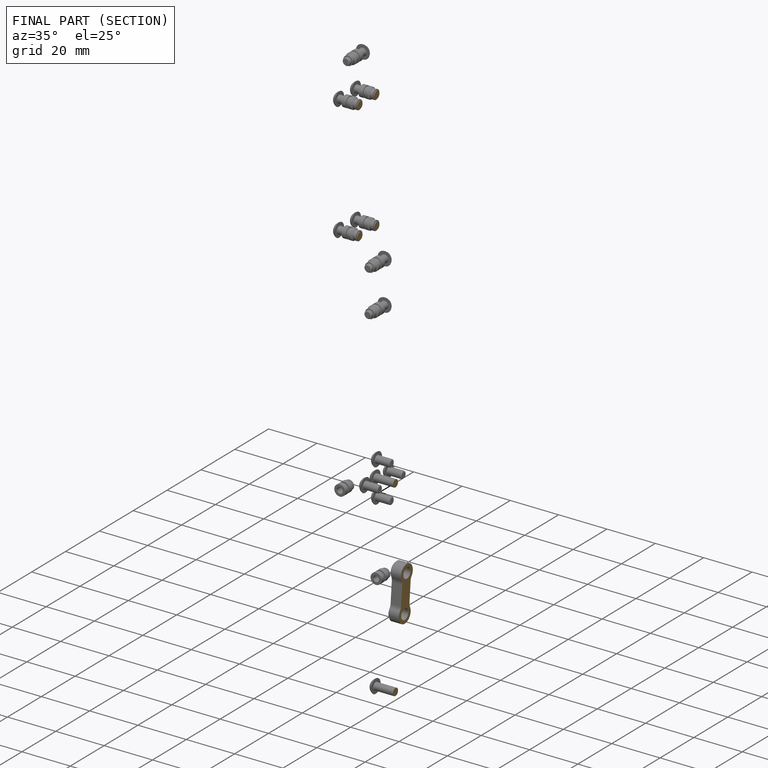
[diagram: finished part — half-section view (interior)]
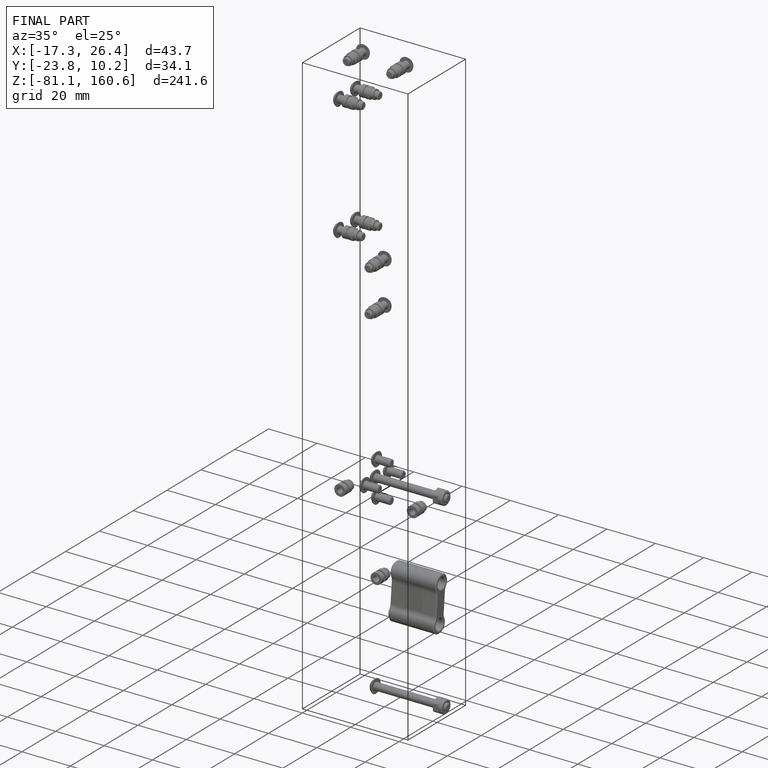
[diagram: finished part — iso view with bounding-box wireframe]
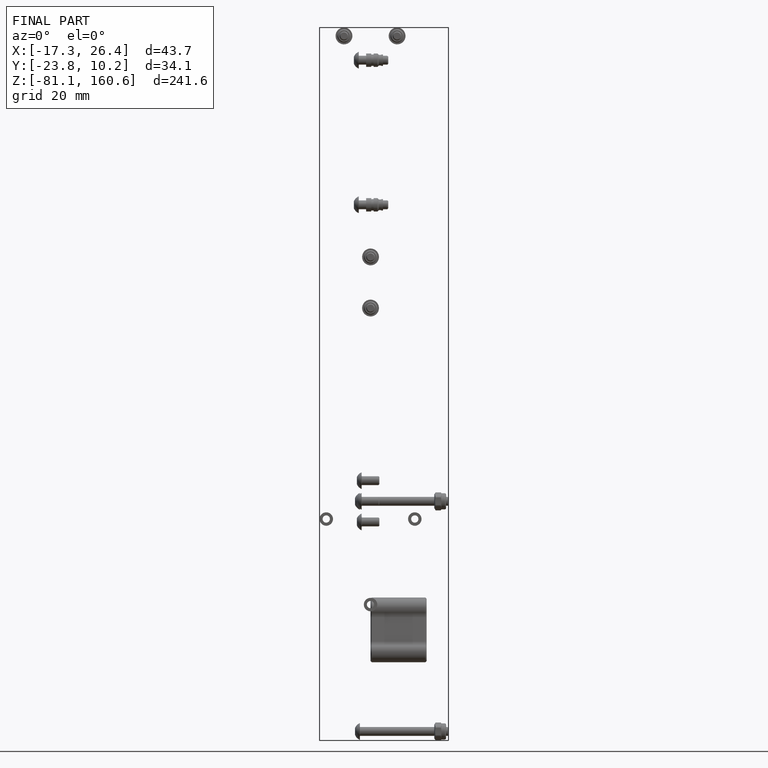
[diagram: finished part — front view with bounding-box wireframe]
